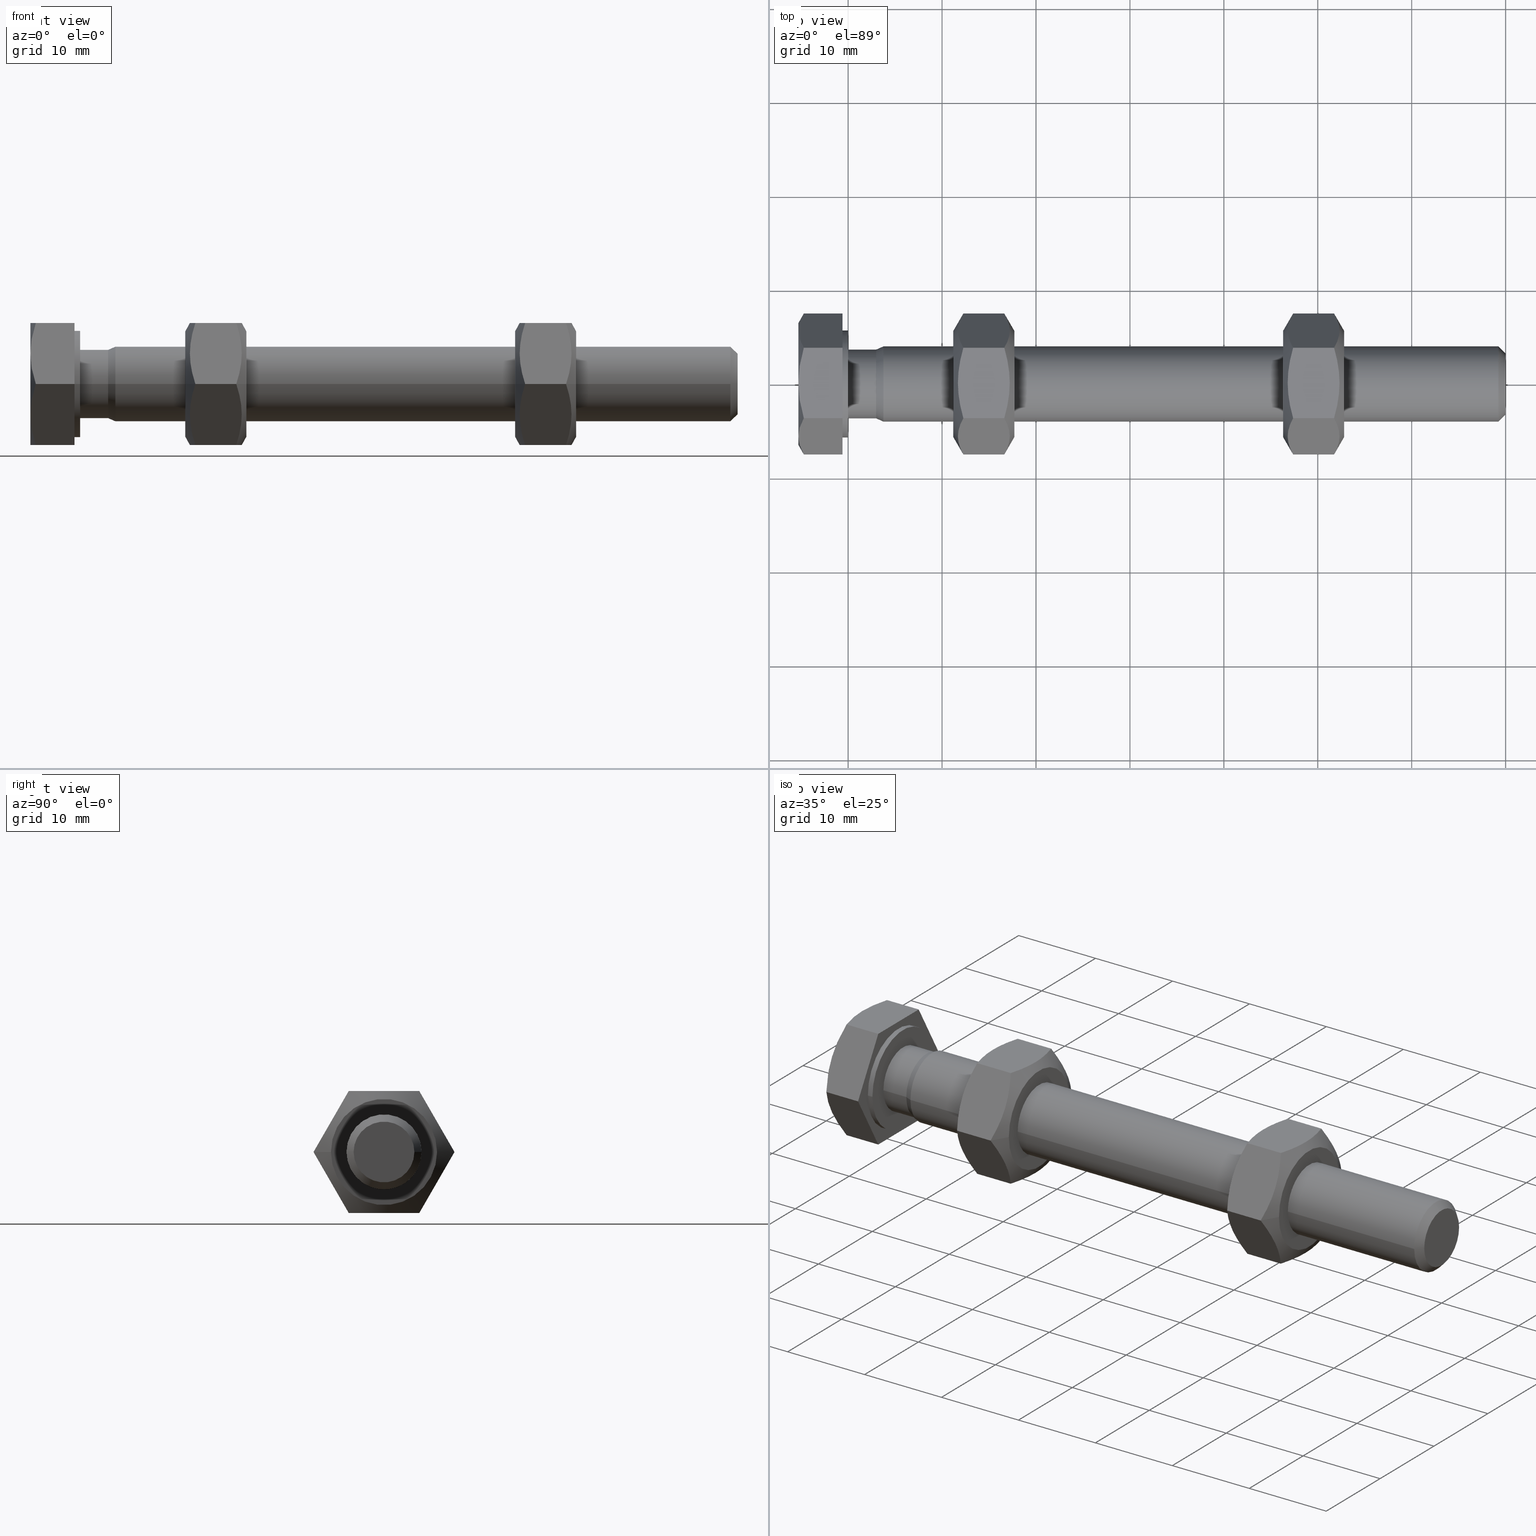
[diagram: canonical four-view strip — front | top / right | iso, engineering-drawing reading convention]
A machine part, canonical four-view strip (front | top / right | iso — engineering-drawing reading convention). The complete STEP part file that produces these views, byte-faithful:
ISO-10303-21;
HEADER;
/* Generated by software containing ST-Developer
 * from STEP Tools, Inc. (www.steptools.com) 
 */

FILE_DESCRIPTION(
/* description */ (''),
/* implementation_level */ '2;1');

FILE_NAME(
/* name */ '800 047.stp',
/* time_stamp */ '2023-12-18T09:12:43+01:00',
/* author */ ('dusan.cotek'),
/* organization */ (''),
/* preprocessor_version */ 'ST-DEVELOPER v20',
/* originating_system */ 'Autodesk Inventor 2024',
/* authorisation */ '');

FILE_SCHEMA (('AUTOMOTIVE_DESIGN { 1 0 10303 214 3 1 1 }'));
ENDSEC;

DATA;
#10=MECHANICAL_DESIGN_GEOMETRIC_PRESENTATION_REPRESENTATION('',(#13,#14,
#15),#1315);
#11=SHAPE_REPRESENTATION_RELATIONSHIP('SRR','None',#1322,#12);
#12=ADVANCED_BREP_SHAPE_REPRESENTATION('',(#16,#17,#18),#1314);
#13=STYLED_ITEM('',(#1331),#16);
#14=STYLED_ITEM('',(#1331),#17);
#15=STYLED_ITEM('',(#1331),#18);
#16=MANIFOLD_SOLID_BREP('T\X2\011B\X0\leso1',#734);
#17=MANIFOLD_SOLID_BREP('T\X2\011B\X0\leso2',#735);
#18=MANIFOLD_SOLID_BREP('T\X2\011B\X0\leso3',#736);
#19=FACE_BOUND('',#152,.T.);
#20=FACE_BOUND('',#159,.T.);
#21=FACE_BOUND('',#165,.T.);
#22=FACE_BOUND('',#168,.T.);
#23=FACE_BOUND('',#180,.T.);
#24=FACE_BOUND('',#183,.T.);
#25=(
BOUNDED_CURVE()
B_SPLINE_CURVE(2,(#1042,#1043,#1044),.UNSPECIFIED.,.F.,.F.)
B_SPLINE_CURVE_WITH_KNOTS((3,3),(0.380711317203905,0.76142263440781),
 .UNSPECIFIED.)
CURVE()
GEOMETRIC_REPRESENTATION_ITEM()
RATIONAL_B_SPLINE_CURVE((1.,1.03795484930203,1.))
REPRESENTATION_ITEM('')
);
#26=(
BOUNDED_CURVE()
B_SPLINE_CURVE(2,(#1047,#1048,#1049),.UNSPECIFIED.,.F.,.F.)
B_SPLINE_CURVE_WITH_KNOTS((3,3),(0.,0.380711317203905),.UNSPECIFIED.)
CURVE()
GEOMETRIC_REPRESENTATION_ITEM()
RATIONAL_B_SPLINE_CURVE((1.,1.03795484930204,1.))
REPRESENTATION_ITEM('')
);
#27=(
BOUNDED_CURVE()
B_SPLINE_CURVE(2,(#1053,#1054,#1055),.UNSPECIFIED.,.F.,.F.)
B_SPLINE_CURVE_WITH_KNOTS((3,3),(0.,0.380711317203904),.UNSPECIFIED.)
CURVE()
GEOMETRIC_REPRESENTATION_ITEM()
RATIONAL_B_SPLINE_CURVE((1.,1.03795484930205,1.))
REPRESENTATION_ITEM('')
);
#28=(
BOUNDED_CURVE()
B_SPLINE_CURVE(2,(#1056,#1057,#1058),.UNSPECIFIED.,.F.,.F.)
B_SPLINE_CURVE_WITH_KNOTS((3,3),(0.380711317203905,0.76142263440781),
 .UNSPECIFIED.)
CURVE()
GEOMETRIC_REPRESENTATION_ITEM()
RATIONAL_B_SPLINE_CURVE((1.,1.03795484930202,1.))
REPRESENTATION_ITEM('')
);
#29=(
BOUNDED_CURVE()
B_SPLINE_CURVE(2,(#1063,#1064,#1065),.UNSPECIFIED.,.F.,.F.)
B_SPLINE_CURVE_WITH_KNOTS((3,3),(0.380711317203905,0.76142263440781),
 .UNSPECIFIED.)
CURVE()
GEOMETRIC_REPRESENTATION_ITEM()
RATIONAL_B_SPLINE_CURVE((1.,1.03795484930206,1.))
REPRESENTATION_ITEM('')
);
#30=(
BOUNDED_CURVE()
B_SPLINE_CURVE(2,(#1067,#1068,#1069),.UNSPECIFIED.,.F.,.F.)
B_SPLINE_CURVE_WITH_KNOTS((3,3),(0.,0.380711317203905),.UNSPECIFIED.)
CURVE()
GEOMETRIC_REPRESENTATION_ITEM()
RATIONAL_B_SPLINE_CURVE((1.,1.03795484930205,1.))
REPRESENTATION_ITEM('')
);
#31=(
BOUNDED_CURVE()
B_SPLINE_CURVE(2,(#1073,#1074,#1075),.UNSPECIFIED.,.F.,.F.)
B_SPLINE_CURVE_WITH_KNOTS((3,3),(0.,0.380711317203904),.UNSPECIFIED.)
CURVE()
GEOMETRIC_REPRESENTATION_ITEM()
RATIONAL_B_SPLINE_CURVE((1.,1.03795484930204,1.))
REPRESENTATION_ITEM('')
);
#32=(
BOUNDED_CURVE()
B_SPLINE_CURVE(2,(#1076,#1077,#1078),.UNSPECIFIED.,.F.,.F.)
B_SPLINE_CURVE_WITH_KNOTS((3,3),(0.380711317203904,0.761422634407808),
 .UNSPECIFIED.)
CURVE()
GEOMETRIC_REPRESENTATION_ITEM()
RATIONAL_B_SPLINE_CURVE((1.,1.03795484930205,1.))
REPRESENTATION_ITEM('')
);
#33=(
BOUNDED_CURVE()
B_SPLINE_CURVE(2,(#1083,#1084,#1085),.UNSPECIFIED.,.F.,.F.)
B_SPLINE_CURVE_WITH_KNOTS((3,3),(0.380711317203905,0.761422634407809),
 .UNSPECIFIED.)
CURVE()
GEOMETRIC_REPRESENTATION_ITEM()
RATIONAL_B_SPLINE_CURVE((1.,1.03795484930204,1.))
REPRESENTATION_ITEM('')
);
#34=(
BOUNDED_CURVE()
B_SPLINE_CURVE(2,(#1087,#1088,#1089),.UNSPECIFIED.,.F.,.F.)
B_SPLINE_CURVE_WITH_KNOTS((3,3),(0.,0.380711317203905),.UNSPECIFIED.)
CURVE()
GEOMETRIC_REPRESENTATION_ITEM()
RATIONAL_B_SPLINE_CURVE((1.,1.03795484930205,1.))
REPRESENTATION_ITEM('')
);
#35=(
BOUNDED_CURVE()
B_SPLINE_CURVE(2,(#1092,#1093,#1094),.UNSPECIFIED.,.F.,.F.)
B_SPLINE_CURVE_WITH_KNOTS((3,3),(0.,0.380711317203905),.UNSPECIFIED.)
CURVE()
GEOMETRIC_REPRESENTATION_ITEM()
RATIONAL_B_SPLINE_CURVE((1.,1.03795484930204,1.))
REPRESENTATION_ITEM('')
);
#36=(
BOUNDED_CURVE()
B_SPLINE_CURVE(2,(#1095,#1096,#1097),.UNSPECIFIED.,.F.,.F.)
B_SPLINE_CURVE_WITH_KNOTS((3,3),(0.380711317203904,0.761422634407809),
 .UNSPECIFIED.)
CURVE()
GEOMETRIC_REPRESENTATION_ITEM()
RATIONAL_B_SPLINE_CURVE((1.,1.03795484930205,1.))
REPRESENTATION_ITEM('')
);
#37=(
BOUNDED_CURVE()
B_SPLINE_CURVE(2,(#1165,#1166,#1167),.UNSPECIFIED.,.F.,.F.)
B_SPLINE_CURVE_WITH_KNOTS((3,3),(0.,0.759483489750648),.UNSPECIFIED.)
CURVE()
GEOMETRIC_REPRESENTATION_ITEM()
RATIONAL_B_SPLINE_CURVE((1.,1.15470053837925,1.))
REPRESENTATION_ITEM('')
);
#38=(
BOUNDED_CURVE()
B_SPLINE_CURVE(2,(#1169,#1170,#1171),.UNSPECIFIED.,.F.,.F.)
B_SPLINE_CURVE_WITH_KNOTS((3,3),(0.,0.759483489750648),.UNSPECIFIED.)
CURVE()
GEOMETRIC_REPRESENTATION_ITEM()
RATIONAL_B_SPLINE_CURVE((1.,1.15470053837925,1.))
REPRESENTATION_ITEM('')
);
#39=(
BOUNDED_CURVE()
B_SPLINE_CURVE(2,(#1173,#1174,#1175),.UNSPECIFIED.,.F.,.F.)
B_SPLINE_CURVE_WITH_KNOTS((3,3),(0.,0.759483489750645),.UNSPECIFIED.)
CURVE()
GEOMETRIC_REPRESENTATION_ITEM()
RATIONAL_B_SPLINE_CURVE((1.,1.15470053837925,1.))
REPRESENTATION_ITEM('')
);
#40=(
BOUNDED_CURVE()
B_SPLINE_CURVE(2,(#1177,#1178,#1179),.UNSPECIFIED.,.F.,.F.)
B_SPLINE_CURVE_WITH_KNOTS((3,3),(0.,0.759483489750644),.UNSPECIFIED.)
CURVE()
GEOMETRIC_REPRESENTATION_ITEM()
RATIONAL_B_SPLINE_CURVE((1.,1.15470053837925,1.))
REPRESENTATION_ITEM('')
);
#41=(
BOUNDED_CURVE()
B_SPLINE_CURVE(2,(#1181,#1182,#1183),.UNSPECIFIED.,.F.,.F.)
B_SPLINE_CURVE_WITH_KNOTS((3,3),(0.,0.759483489750649),.UNSPECIFIED.)
CURVE()
GEOMETRIC_REPRESENTATION_ITEM()
RATIONAL_B_SPLINE_CURVE((1.,1.15470053837925,1.))
REPRESENTATION_ITEM('')
);
#42=(
BOUNDED_CURVE()
B_SPLINE_CURVE(2,(#1185,#1186,#1187),.UNSPECIFIED.,.F.,.F.)
B_SPLINE_CURVE_WITH_KNOTS((3,3),(0.,0.759483489750647),.UNSPECIFIED.)
CURVE()
GEOMETRIC_REPRESENTATION_ITEM()
RATIONAL_B_SPLINE_CURVE((1.,1.15470053837925,1.))
REPRESENTATION_ITEM('')
);
#43=(
BOUNDED_CURVE()
B_SPLINE_CURVE(2,(#1191,#1192,#1193),.UNSPECIFIED.,.F.,.F.)
B_SPLINE_CURVE_WITH_KNOTS((3,3),(0.,0.759483489750647),.UNSPECIFIED.)
CURVE()
GEOMETRIC_REPRESENTATION_ITEM()
RATIONAL_B_SPLINE_CURVE((1.,1.15470053837925,1.))
REPRESENTATION_ITEM('')
);
#44=(
BOUNDED_CURVE()
B_SPLINE_CURVE(2,(#1195,#1196,#1197),.UNSPECIFIED.,.F.,.F.)
B_SPLINE_CURVE_WITH_KNOTS((3,3),(0.,0.759483489750647),.UNSPECIFIED.)
CURVE()
GEOMETRIC_REPRESENTATION_ITEM()
RATIONAL_B_SPLINE_CURVE((1.,1.15470053837925,1.))
REPRESENTATION_ITEM('')
);
#45=(
BOUNDED_CURVE()
B_SPLINE_CURVE(2,(#1199,#1200,#1201),.UNSPECIFIED.,.F.,.F.)
B_SPLINE_CURVE_WITH_KNOTS((3,3),(0.,0.759483489750646),.UNSPECIFIED.)
CURVE()
GEOMETRIC_REPRESENTATION_ITEM()
RATIONAL_B_SPLINE_CURVE((1.,1.15470053837924,1.))
REPRESENTATION_ITEM('')
);
#46=(
BOUNDED_CURVE()
B_SPLINE_CURVE(2,(#1204,#1205,#1206),.UNSPECIFIED.,.F.,.F.)
B_SPLINE_CURVE_WITH_KNOTS((3,3),(0.,0.759483489750648),.UNSPECIFIED.)
CURVE()
GEOMETRIC_REPRESENTATION_ITEM()
RATIONAL_B_SPLINE_CURVE((1.,1.15470053837926,1.))
REPRESENTATION_ITEM('')
);
#47=(
BOUNDED_CURVE()
B_SPLINE_CURVE(2,(#1208,#1209,#1210),.UNSPECIFIED.,.F.,.F.)
B_SPLINE_CURVE_WITH_KNOTS((3,3),(0.,0.759483489750643),.UNSPECIFIED.)
CURVE()
GEOMETRIC_REPRESENTATION_ITEM()
RATIONAL_B_SPLINE_CURVE((1.,1.15470053837925,1.))
REPRESENTATION_ITEM('')
);
#48=(
BOUNDED_CURVE()
B_SPLINE_CURVE(2,(#1211,#1212,#1213),.UNSPECIFIED.,.F.,.F.)
B_SPLINE_CURVE_WITH_KNOTS((3,3),(0.,0.759483489750644),.UNSPECIFIED.)
CURVE()
GEOMETRIC_REPRESENTATION_ITEM()
RATIONAL_B_SPLINE_CURVE((1.,1.15470053837925,1.))
REPRESENTATION_ITEM('')
);
#49=(
BOUNDED_CURVE()
B_SPLINE_CURVE(2,(#1251,#1252,#1253),.UNSPECIFIED.,.F.,.F.)
B_SPLINE_CURVE_WITH_KNOTS((3,3),(0.,0.759483489750648),.UNSPECIFIED.)
CURVE()
GEOMETRIC_REPRESENTATION_ITEM()
RATIONAL_B_SPLINE_CURVE((1.,1.15470053837925,1.))
REPRESENTATION_ITEM('')
);
#50=(
BOUNDED_CURVE()
B_SPLINE_CURVE(2,(#1255,#1256,#1257),.UNSPECIFIED.,.F.,.F.)
B_SPLINE_CURVE_WITH_KNOTS((3,3),(0.,0.759483489750648),.UNSPECIFIED.)
CURVE()
GEOMETRIC_REPRESENTATION_ITEM()
RATIONAL_B_SPLINE_CURVE((1.,1.15470053837925,1.))
REPRESENTATION_ITEM('')
);
#51=(
BOUNDED_CURVE()
B_SPLINE_CURVE(2,(#1259,#1260,#1261),.UNSPECIFIED.,.F.,.F.)
B_SPLINE_CURVE_WITH_KNOTS((3,3),(0.,0.759483489750645),.UNSPECIFIED.)
CURVE()
GEOMETRIC_REPRESENTATION_ITEM()
RATIONAL_B_SPLINE_CURVE((1.,1.15470053837925,1.))
REPRESENTATION_ITEM('')
);
#52=(
BOUNDED_CURVE()
B_SPLINE_CURVE(2,(#1263,#1264,#1265),.UNSPECIFIED.,.F.,.F.)
B_SPLINE_CURVE_WITH_KNOTS((3,3),(0.,0.759483489750644),.UNSPECIFIED.)
CURVE()
GEOMETRIC_REPRESENTATION_ITEM()
RATIONAL_B_SPLINE_CURVE((1.,1.15470053837925,1.))
REPRESENTATION_ITEM('')
);
#53=(
BOUNDED_CURVE()
B_SPLINE_CURVE(2,(#1267,#1268,#1269),.UNSPECIFIED.,.F.,.F.)
B_SPLINE_CURVE_WITH_KNOTS((3,3),(0.,0.759483489750649),.UNSPECIFIED.)
CURVE()
GEOMETRIC_REPRESENTATION_ITEM()
RATIONAL_B_SPLINE_CURVE((1.,1.15470053837925,1.))
REPRESENTATION_ITEM('')
);
#54=(
BOUNDED_CURVE()
B_SPLINE_CURVE(2,(#1271,#1272,#1273),.UNSPECIFIED.,.F.,.F.)
B_SPLINE_CURVE_WITH_KNOTS((3,3),(0.,0.759483489750647),.UNSPECIFIED.)
CURVE()
GEOMETRIC_REPRESENTATION_ITEM()
RATIONAL_B_SPLINE_CURVE((1.,1.15470053837925,1.))
REPRESENTATION_ITEM('')
);
#55=(
BOUNDED_CURVE()
B_SPLINE_CURVE(2,(#1277,#1278,#1279),.UNSPECIFIED.,.F.,.F.)
B_SPLINE_CURVE_WITH_KNOTS((3,3),(0.,0.759483489750647),.UNSPECIFIED.)
CURVE()
GEOMETRIC_REPRESENTATION_ITEM()
RATIONAL_B_SPLINE_CURVE((1.,1.15470053837925,1.))
REPRESENTATION_ITEM('')
);
#56=(
BOUNDED_CURVE()
B_SPLINE_CURVE(2,(#1281,#1282,#1283),.UNSPECIFIED.,.F.,.F.)
B_SPLINE_CURVE_WITH_KNOTS((3,3),(0.,0.759483489750647),.UNSPECIFIED.)
CURVE()
GEOMETRIC_REPRESENTATION_ITEM()
RATIONAL_B_SPLINE_CURVE((1.,1.15470053837925,1.))
REPRESENTATION_ITEM('')
);
#57=(
BOUNDED_CURVE()
B_SPLINE_CURVE(2,(#1285,#1286,#1287),.UNSPECIFIED.,.F.,.F.)
B_SPLINE_CURVE_WITH_KNOTS((3,3),(0.,0.759483489750646),.UNSPECIFIED.)
CURVE()
GEOMETRIC_REPRESENTATION_ITEM()
RATIONAL_B_SPLINE_CURVE((1.,1.15470053837924,1.))
REPRESENTATION_ITEM('')
);
#58=(
BOUNDED_CURVE()
B_SPLINE_CURVE(2,(#1290,#1291,#1292),.UNSPECIFIED.,.F.,.F.)
B_SPLINE_CURVE_WITH_KNOTS((3,3),(0.,0.759483489750648),.UNSPECIFIED.)
CURVE()
GEOMETRIC_REPRESENTATION_ITEM()
RATIONAL_B_SPLINE_CURVE((1.,1.15470053837926,1.))
REPRESENTATION_ITEM('')
);
#59=(
BOUNDED_CURVE()
B_SPLINE_CURVE(2,(#1294,#1295,#1296),.UNSPECIFIED.,.F.,.F.)
B_SPLINE_CURVE_WITH_KNOTS((3,3),(0.,0.759483489750643),.UNSPECIFIED.)
CURVE()
GEOMETRIC_REPRESENTATION_ITEM()
RATIONAL_B_SPLINE_CURVE((1.,1.15470053837925,1.))
REPRESENTATION_ITEM('')
);
#60=(
BOUNDED_CURVE()
B_SPLINE_CURVE(2,(#1297,#1298,#1299),.UNSPECIFIED.,.F.,.F.)
B_SPLINE_CURVE_WITH_KNOTS((3,3),(0.,0.759483489750644),.UNSPECIFIED.)
CURVE()
GEOMETRIC_REPRESENTATION_ITEM()
RATIONAL_B_SPLINE_CURVE((1.,1.15470053837925,1.))
REPRESENTATION_ITEM('')
);
#61=PLANE('',#765);
#62=PLANE('',#778);
#63=PLANE('',#779);
#64=PLANE('',#780);
#65=PLANE('',#781);
#66=PLANE('',#783);
#67=PLANE('',#784);
#68=PLANE('',#785);
#69=PLANE('',#786);
#70=PLANE('',#789);
#71=PLANE('',#800);
#72=PLANE('',#804);
#73=PLANE('',#808);
#74=PLANE('',#809);
#75=PLANE('',#810);
#76=PLANE('',#811);
#77=PLANE('',#812);
#78=PLANE('',#813);
#79=PLANE('',#820);
#80=PLANE('',#824);
#81=PLANE('',#828);
#82=PLANE('',#829);
#83=PLANE('',#830);
#84=PLANE('',#831);
#85=PLANE('',#832);
#86=PLANE('',#833);
#87=CYLINDRICAL_SURFACE('',#763,4.);
#88=CYLINDRICAL_SURFACE('',#787,5.7);
#89=CYLINDRICAL_SURFACE('',#791,3.66170875);
#90=CYLINDRICAL_SURFACE('',#797,3.3235);
#91=CYLINDRICAL_SURFACE('',#817,3.3235);
#92=FACE_OUTER_BOUND('',#139,.T.);
#93=FACE_OUTER_BOUND('',#140,.T.);
#94=FACE_OUTER_BOUND('',#141,.T.);
#95=FACE_OUTER_BOUND('',#142,.T.);
#96=FACE_OUTER_BOUND('',#143,.T.);
#97=FACE_OUTER_BOUND('',#144,.T.);
#98=FACE_OUTER_BOUND('',#145,.T.);
#99=FACE_OUTER_BOUND('',#146,.T.);
#100=FACE_OUTER_BOUND('',#147,.T.);
#101=FACE_OUTER_BOUND('',#148,.T.);
#102=FACE_OUTER_BOUND('',#149,.T.);
#103=FACE_OUTER_BOUND('',#150,.T.);
#104=FACE_OUTER_BOUND('',#151,.T.);
#105=FACE_OUTER_BOUND('',#153,.T.);
#106=FACE_OUTER_BOUND('',#154,.T.);
#107=FACE_OUTER_BOUND('',#155,.T.);
#108=FACE_OUTER_BOUND('',#156,.T.);
#109=FACE_OUTER_BOUND('',#157,.T.);
#110=FACE_OUTER_BOUND('',#158,.T.);
#111=FACE_OUTER_BOUND('',#160,.T.);
#112=FACE_OUTER_BOUND('',#161,.T.);
#113=FACE_OUTER_BOUND('',#162,.T.);
#114=FACE_OUTER_BOUND('',#163,.T.);
#115=FACE_OUTER_BOUND('',#164,.T.);
#116=FACE_OUTER_BOUND('',#166,.T.);
#117=FACE_OUTER_BOUND('',#167,.T.);
#118=FACE_OUTER_BOUND('',#169,.T.);
#119=FACE_OUTER_BOUND('',#170,.T.);
#120=FACE_OUTER_BOUND('',#171,.T.);
#121=FACE_OUTER_BOUND('',#172,.T.);
#122=FACE_OUTER_BOUND('',#173,.T.);
#123=FACE_OUTER_BOUND('',#174,.T.);
#124=FACE_OUTER_BOUND('',#175,.T.);
#125=FACE_OUTER_BOUND('',#176,.T.);
#126=FACE_OUTER_BOUND('',#177,.T.);
#127=FACE_OUTER_BOUND('',#178,.T.);
#128=FACE_OUTER_BOUND('',#179,.T.);
#129=FACE_OUTER_BOUND('',#181,.T.);
#130=FACE_OUTER_BOUND('',#182,.T.);
#131=FACE_OUTER_BOUND('',#184,.T.);
#132=FACE_OUTER_BOUND('',#185,.T.);
#133=FACE_OUTER_BOUND('',#186,.T.);
#134=FACE_OUTER_BOUND('',#187,.T.);
#135=FACE_OUTER_BOUND('',#188,.T.);
#136=FACE_OUTER_BOUND('',#189,.T.);
#137=FACE_OUTER_BOUND('',#190,.T.);
#138=FACE_OUTER_BOUND('',#191,.T.);
#139=EDGE_LOOP('',(#465,#466,#467,#468,#469));
#140=EDGE_LOOP('',(#470,#471,#472,#473,#474));
#141=EDGE_LOOP('',(#475));
#142=EDGE_LOOP('',(#476,#477,#478));
#143=EDGE_LOOP('',(#479,#480,#481));
#144=EDGE_LOOP('',(#482,#483,#484));
#145=EDGE_LOOP('',(#485,#486,#487));
#146=EDGE_LOOP('',(#488,#489,#490));
#147=EDGE_LOOP('',(#491,#492,#493));
#148=EDGE_LOOP('',(#494,#495,#496,#497,#498));
#149=EDGE_LOOP('',(#499,#500,#501,#502,#503));
#150=EDGE_LOOP('',(#504,#505,#506,#507,#508));
#151=EDGE_LOOP('',(#509,#510,#511,#512,#513,#514));
#152=EDGE_LOOP('',(#515));
#153=EDGE_LOOP('',(#516,#517,#518,#519,#520));
#154=EDGE_LOOP('',(#521,#522,#523,#524,#525));
#155=EDGE_LOOP('',(#526,#527,#528,#529,#530));
#156=EDGE_LOOP('',(#531,#532,#533,#534,#535,#536));
#157=EDGE_LOOP('',(#537,#538,#539,#540));
#158=EDGE_LOOP('',(#541));
#159=EDGE_LOOP('',(#542));
#160=EDGE_LOOP('',(#543,#544,#545,#546));
#161=EDGE_LOOP('',(#547,#548,#549,#550));
#162=EDGE_LOOP('',(#551,#552,#553,#554));
#163=EDGE_LOOP('',(#555,#556,#557,#558,#559));
#164=EDGE_LOOP('',(#560));
#165=EDGE_LOOP('',(#561));
#166=EDGE_LOOP('',(#562,#563,#564,#565,#566));
#167=EDGE_LOOP('',(#567));
#168=EDGE_LOOP('',(#568));
#169=EDGE_LOOP('',(#569,#570,#571,#572,#573,#574,#575,#576,#577));
#170=EDGE_LOOP('',(#578,#579,#580,#581,#582,#583,#584,#585,#586));
#171=EDGE_LOOP('',(#587,#588,#589,#590));
#172=EDGE_LOOP('',(#591,#592,#593,#594));
#173=EDGE_LOOP('',(#595,#596,#597,#598));
#174=EDGE_LOOP('',(#599,#600,#601,#602));
#175=EDGE_LOOP('',(#603,#604,#605,#606));
#176=EDGE_LOOP('',(#607,#608,#609,#610));
#177=EDGE_LOOP('',(#611,#612,#613,#614));
#178=EDGE_LOOP('',(#615,#616,#617,#618,#619));
#179=EDGE_LOOP('',(#620));
#180=EDGE_LOOP('',(#621));
#181=EDGE_LOOP('',(#622,#623,#624,#625,#626));
#182=EDGE_LOOP('',(#627));
#183=EDGE_LOOP('',(#628));
#184=EDGE_LOOP('',(#629,#630,#631,#632,#633,#634,#635,#636,#637));
#185=EDGE_LOOP('',(#638,#639,#640,#641,#642,#643,#644,#645,#646));
#186=EDGE_LOOP('',(#647,#648,#649,#650));
#187=EDGE_LOOP('',(#651,#652,#653,#654));
#188=EDGE_LOOP('',(#655,#656,#657,#658));
#189=EDGE_LOOP('',(#659,#660,#661,#662));
#190=EDGE_LOOP('',(#663,#664,#665,#666));
#191=EDGE_LOOP('',(#667,#668,#669,#670));
#192=LINE('',#1032,#231);
#193=LINE('',#1036,#232);
#194=LINE('',#1101,#233);
#195=LINE('',#1103,#234);
#196=LINE('',#1104,#235);
#197=LINE('',#1107,#236);
#198=LINE('',#1108,#237);
#199=LINE('',#1111,#238);
#200=LINE('',#1112,#239);
#201=LINE('',#1115,#240);
#202=LINE('',#1117,#241);
#203=LINE('',#1118,#242);
#204=LINE('',#1122,#243);
#205=LINE('',#1124,#244);
#206=LINE('',#1130,#245);
#207=LINE('',#1137,#246);
#208=LINE('',#1139,#247);
#209=LINE('',#1144,#248);
#210=LINE('',#1148,#249);
#211=LINE('',#1157,#250);
#212=LINE('',#1184,#251);
#213=LINE('',#1202,#252);
#214=LINE('',#1215,#253);
#215=LINE('',#1216,#254);
#216=LINE('',#1218,#255);
#217=LINE('',#1220,#256);
#218=LINE('',#1222,#257);
#219=LINE('',#1224,#258);
#220=LINE('',#1230,#259);
#221=LINE('',#1234,#260);
#222=LINE('',#1243,#261);
#223=LINE('',#1270,#262);
#224=LINE('',#1288,#263);
#225=LINE('',#1301,#264);
#226=LINE('',#1302,#265);
#227=LINE('',#1304,#266);
#228=LINE('',#1306,#267);
#229=LINE('',#1308,#268);
#230=LINE('',#1310,#269);
#231=VECTOR('',#842,3.61659375000001);
#232=VECTOR('',#847,4.);
#233=VECTOR('',#878,10.);
#234=VECTOR('',#879,10.);
#235=VECTOR('',#880,10.);
#236=VECTOR('',#883,10.);
#237=VECTOR('',#884,10.);
#238=VECTOR('',#887,10.);
#239=VECTOR('',#888,10.);
#240=VECTOR('',#891,10.);
#241=VECTOR('',#892,10.);
#242=VECTOR('',#893,9.99999999999999);
#243=VECTOR('',#898,10.);
#244=VECTOR('',#901,10.);
#245=VECTOR('',#910,5.7);
#246=VECTOR('',#919,3.66170875);
#247=VECTOR('',#922,3.830854375);
#248=VECTOR('',#927,3.6617911733533);
#249=VECTOR('',#932,3.3235);
#250=VECTOR('',#943,3.6617911733533);
#251=VECTOR('',#952,6.57777674973257);
#252=VECTOR('',#955,6.57777674973257);
#253=VECTOR('',#958,10.);
#254=VECTOR('',#959,10.);
#255=VECTOR('',#962,10.);
#256=VECTOR('',#965,10.);
#257=VECTOR('',#968,10.);
#258=VECTOR('',#971,10.);
#259=VECTOR('',#978,3.6617911733533);
#260=VECTOR('',#983,3.3235);
#261=VECTOR('',#994,3.6617911733533);
#262=VECTOR('',#1003,6.57777674973257);
#263=VECTOR('',#1006,6.57777674973257);
#264=VECTOR('',#1009,10.);
#265=VECTOR('',#1010,10.);
#266=VECTOR('',#1013,10.);
#267=VECTOR('',#1016,10.);
#268=VECTOR('',#1019,10.);
#269=VECTOR('',#1022,10.);
#270=CIRCLE('',#760,4.);
#271=CIRCLE('',#761,4.);
#272=CIRCLE('',#762,3.23318750000001);
#273=CIRCLE('',#764,4.);
#274=CIRCLE('',#767,6.50000000000003);
#275=CIRCLE('',#769,6.50000000000003);
#276=CIRCLE('',#771,6.50000000000003);
#277=CIRCLE('',#773,6.50000000000003);
#278=CIRCLE('',#775,6.50000000000003);
#279=CIRCLE('',#777,6.50000000000003);
#280=CIRCLE('',#782,5.7);
#281=CIRCLE('',#788,5.7);
#282=CIRCLE('',#790,3.66170875);
#283=CIRCLE('',#792,3.66170875);
#284=CIRCLE('',#795,3.3235);
#285=CIRCLE('',#796,4.00008234670659);
#286=CIRCLE('',#798,3.3235);
#287=CIRCLE('',#799,3.3235);
#288=CIRCLE('',#801,5.65);
#289=CIRCLE('',#803,4.00008234670659);
#290=CIRCLE('',#805,5.65);
#291=CIRCLE('',#815,3.3235);
#292=CIRCLE('',#816,4.00008234670659);
#293=CIRCLE('',#818,3.3235);
#294=CIRCLE('',#819,3.3235);
#295=CIRCLE('',#821,5.65);
#296=CIRCLE('',#823,4.00008234670659);
#297=CIRCLE('',#825,5.65);
#298=VERTEX_POINT('',#1027);
#299=VERTEX_POINT('',#1028);
#300=VERTEX_POINT('',#1031);
#301=VERTEX_POINT('',#1035);
#302=VERTEX_POINT('',#1040);
#303=VERTEX_POINT('',#1041);
#304=VERTEX_POINT('',#1045);
#305=VERTEX_POINT('',#1051);
#306=VERTEX_POINT('',#1052);
#307=VERTEX_POINT('',#1061);
#308=VERTEX_POINT('',#1062);
#309=VERTEX_POINT('',#1071);
#310=VERTEX_POINT('',#1072);
#311=VERTEX_POINT('',#1081);
#312=VERTEX_POINT('',#1082);
#313=VERTEX_POINT('',#1091);
#314=VERTEX_POINT('',#1100);
#315=VERTEX_POINT('',#1102);
#316=VERTEX_POINT('',#1106);
#317=VERTEX_POINT('',#1110);
#318=VERTEX_POINT('',#1114);
#319=VERTEX_POINT('',#1116);
#320=VERTEX_POINT('',#1119);
#321=VERTEX_POINT('',#1128);
#322=VERTEX_POINT('',#1132);
#323=VERTEX_POINT('',#1135);
#324=VERTEX_POINT('',#1141);
#325=VERTEX_POINT('',#1143);
#326=VERTEX_POINT('',#1147);
#327=VERTEX_POINT('',#1149);
#328=VERTEX_POINT('',#1153);
#329=VERTEX_POINT('',#1156);
#330=VERTEX_POINT('',#1160);
#331=VERTEX_POINT('',#1163);
#332=VERTEX_POINT('',#1164);
#333=VERTEX_POINT('',#1168);
#334=VERTEX_POINT('',#1172);
#335=VERTEX_POINT('',#1176);
#336=VERTEX_POINT('',#1180);
#337=VERTEX_POINT('',#1189);
#338=VERTEX_POINT('',#1190);
#339=VERTEX_POINT('',#1194);
#340=VERTEX_POINT('',#1198);
#341=VERTEX_POINT('',#1203);
#342=VERTEX_POINT('',#1207);
#343=VERTEX_POINT('',#1227);
#344=VERTEX_POINT('',#1229);
#345=VERTEX_POINT('',#1233);
#346=VERTEX_POINT('',#1235);
#347=VERTEX_POINT('',#1239);
#348=VERTEX_POINT('',#1242);
#349=VERTEX_POINT('',#1246);
#350=VERTEX_POINT('',#1249);
#351=VERTEX_POINT('',#1250);
#352=VERTEX_POINT('',#1254);
#353=VERTEX_POINT('',#1258);
#354=VERTEX_POINT('',#1262);
#355=VERTEX_POINT('',#1266);
#356=VERTEX_POINT('',#1275);
#357=VERTEX_POINT('',#1276);
#358=VERTEX_POINT('',#1280);
#359=VERTEX_POINT('',#1284);
#360=VERTEX_POINT('',#1289);
#361=VERTEX_POINT('',#1293);
#362=EDGE_CURVE('',#298,#299,#270,.T.);
#363=EDGE_CURVE('',#299,#298,#271,.T.);
#364=EDGE_CURVE('',#298,#300,#192,.T.);
#365=EDGE_CURVE('',#300,#300,#272,.T.);
#366=EDGE_CURVE('',#299,#301,#193,.T.);
#367=EDGE_CURVE('',#301,#301,#273,.T.);
#368=EDGE_CURVE('',#302,#303,#25,.T.);
#369=EDGE_CURVE('',#304,#302,#274,.T.);
#370=EDGE_CURVE('',#303,#304,#26,.T.);
#371=EDGE_CURVE('',#305,#306,#27,.T.);
#372=EDGE_CURVE('',#304,#305,#28,.T.);
#373=EDGE_CURVE('',#306,#304,#275,.T.);
#374=EDGE_CURVE('',#307,#308,#29,.T.);
#375=EDGE_CURVE('',#302,#307,#276,.T.);
#376=EDGE_CURVE('',#308,#302,#30,.T.);
#377=EDGE_CURVE('',#309,#310,#31,.T.);
#378=EDGE_CURVE('',#306,#309,#32,.T.);
#379=EDGE_CURVE('',#310,#306,#277,.T.);
#380=EDGE_CURVE('',#311,#312,#33,.T.);
#381=EDGE_CURVE('',#307,#311,#278,.T.);
#382=EDGE_CURVE('',#312,#307,#34,.T.);
#383=EDGE_CURVE('',#313,#311,#35,.T.);
#384=EDGE_CURVE('',#310,#313,#36,.T.);
#385=EDGE_CURVE('',#311,#310,#279,.T.);
#386=EDGE_CURVE('',#314,#312,#194,.T.);
#387=EDGE_CURVE('',#315,#314,#195,.T.);
#388=EDGE_CURVE('',#315,#313,#196,.T.);
#389=EDGE_CURVE('',#316,#308,#197,.T.);
#390=EDGE_CURVE('',#314,#316,#198,.T.);
#391=EDGE_CURVE('',#317,#303,#199,.T.);
#392=EDGE_CURVE('',#316,#317,#200,.T.);
#393=EDGE_CURVE('',#317,#318,#201,.T.);
#394=EDGE_CURVE('',#318,#319,#202,.T.);
#395=EDGE_CURVE('',#319,#315,#203,.T.);
#396=EDGE_CURVE('',#320,#320,#280,.T.);
#397=EDGE_CURVE('',#318,#305,#204,.T.);
#398=EDGE_CURVE('',#319,#309,#205,.T.);
#399=EDGE_CURVE('',#321,#321,#281,.T.);
#400=EDGE_CURVE('',#321,#320,#206,.T.);
#401=EDGE_CURVE('',#322,#322,#282,.T.);
#402=EDGE_CURVE('',#323,#323,#283,.T.);
#403=EDGE_CURVE('',#323,#322,#207,.T.);
#404=EDGE_CURVE('',#301,#323,#208,.T.);
#405=EDGE_CURVE('',#324,#324,#284,.T.);
#406=EDGE_CURVE('',#324,#325,#209,.T.);
#407=EDGE_CURVE('',#325,#325,#285,.T.);
#408=EDGE_CURVE('',#324,#326,#210,.T.);
#409=EDGE_CURVE('',#327,#326,#286,.T.);
#410=EDGE_CURVE('',#326,#327,#287,.T.);
#411=EDGE_CURVE('',#328,#328,#288,.T.);
#412=EDGE_CURVE('',#327,#329,#211,.T.);
#413=EDGE_CURVE('',#329,#329,#289,.T.);
#414=EDGE_CURVE('',#330,#330,#290,.T.);
#415=EDGE_CURVE('',#331,#332,#37,.T.);
#416=EDGE_CURVE('',#333,#331,#38,.T.);
#417=EDGE_CURVE('',#334,#333,#39,.T.);
#418=EDGE_CURVE('',#335,#334,#40,.T.);
#419=EDGE_CURVE('',#336,#335,#41,.T.);
#420=EDGE_CURVE('',#336,#328,#212,.T.);
#421=EDGE_CURVE('',#332,#336,#42,.T.);
#422=EDGE_CURVE('',#337,#338,#43,.T.);
#423=EDGE_CURVE('',#339,#337,#44,.T.);
#424=EDGE_CURVE('',#340,#339,#45,.T.);
#425=EDGE_CURVE('',#340,#330,#213,.T.);
#426=EDGE_CURVE('',#341,#340,#46,.T.);
#427=EDGE_CURVE('',#342,#341,#47,.T.);
#428=EDGE_CURVE('',#338,#342,#48,.T.);
#429=EDGE_CURVE('',#333,#338,#214,.T.);
#430=EDGE_CURVE('',#334,#342,#215,.T.);
#431=EDGE_CURVE('',#335,#341,#216,.T.);
#432=EDGE_CURVE('',#331,#337,#217,.T.);
#433=EDGE_CURVE('',#332,#339,#218,.T.);
#434=EDGE_CURVE('',#336,#340,#219,.T.);
#435=EDGE_CURVE('',#343,#343,#291,.T.);
#436=EDGE_CURVE('',#343,#344,#220,.T.);
#437=EDGE_CURVE('',#344,#344,#292,.T.);
#438=EDGE_CURVE('',#343,#345,#221,.T.);
#439=EDGE_CURVE('',#346,#345,#293,.T.);
#440=EDGE_CURVE('',#345,#346,#294,.T.);
#441=EDGE_CURVE('',#347,#347,#295,.T.);
#442=EDGE_CURVE('',#346,#348,#222,.T.);
#443=EDGE_CURVE('',#348,#348,#296,.T.);
#444=EDGE_CURVE('',#349,#349,#297,.T.);
#445=EDGE_CURVE('',#350,#351,#49,.T.);
#446=EDGE_CURVE('',#352,#350,#50,.T.);
#447=EDGE_CURVE('',#353,#352,#51,.T.);
#448=EDGE_CURVE('',#354,#353,#52,.T.);
#449=EDGE_CURVE('',#355,#354,#53,.T.);
#450=EDGE_CURVE('',#355,#347,#223,.T.);
#451=EDGE_CURVE('',#351,#355,#54,.T.);
#452=EDGE_CURVE('',#356,#357,#55,.T.);
#453=EDGE_CURVE('',#358,#356,#56,.T.);
#454=EDGE_CURVE('',#359,#358,#57,.T.);
#455=EDGE_CURVE('',#359,#349,#224,.T.);
#456=EDGE_CURVE('',#360,#359,#58,.T.);
#457=EDGE_CURVE('',#361,#360,#59,.T.);
#458=EDGE_CURVE('',#357,#361,#60,.T.);
#459=EDGE_CURVE('',#352,#357,#225,.T.);
#460=EDGE_CURVE('',#353,#361,#226,.T.);
#461=EDGE_CURVE('',#354,#360,#227,.T.);
#462=EDGE_CURVE('',#350,#356,#228,.T.);
#463=EDGE_CURVE('',#351,#358,#229,.T.);
#464=EDGE_CURVE('',#355,#359,#230,.T.);
#465=ORIENTED_EDGE('',*,*,#362,.T.);
#466=ORIENTED_EDGE('',*,*,#363,.T.);
#467=ORIENTED_EDGE('',*,*,#364,.T.);
#468=ORIENTED_EDGE('',*,*,#365,.T.);
#469=ORIENTED_EDGE('',*,*,#364,.F.);
#470=ORIENTED_EDGE('',*,*,#362,.F.);
#471=ORIENTED_EDGE('',*,*,#363,.F.);
#472=ORIENTED_EDGE('',*,*,#366,.T.);
#473=ORIENTED_EDGE('',*,*,#367,.T.);
#474=ORIENTED_EDGE('',*,*,#366,.F.);
#475=ORIENTED_EDGE('',*,*,#365,.F.);
#476=ORIENTED_EDGE('',*,*,#368,.F.);
#477=ORIENTED_EDGE('',*,*,#369,.F.);
#478=ORIENTED_EDGE('',*,*,#370,.F.);
#479=ORIENTED_EDGE('',*,*,#371,.F.);
#480=ORIENTED_EDGE('',*,*,#372,.F.);
#481=ORIENTED_EDGE('',*,*,#373,.F.);
#482=ORIENTED_EDGE('',*,*,#374,.F.);
#483=ORIENTED_EDGE('',*,*,#375,.F.);
#484=ORIENTED_EDGE('',*,*,#376,.F.);
#485=ORIENTED_EDGE('',*,*,#377,.F.);
#486=ORIENTED_EDGE('',*,*,#378,.F.);
#487=ORIENTED_EDGE('',*,*,#379,.F.);
#488=ORIENTED_EDGE('',*,*,#380,.F.);
#489=ORIENTED_EDGE('',*,*,#381,.F.);
#490=ORIENTED_EDGE('',*,*,#382,.F.);
#491=ORIENTED_EDGE('',*,*,#383,.F.);
#492=ORIENTED_EDGE('',*,*,#384,.F.);
#493=ORIENTED_EDGE('',*,*,#385,.F.);
#494=ORIENTED_EDGE('',*,*,#383,.T.);
#495=ORIENTED_EDGE('',*,*,#380,.T.);
#496=ORIENTED_EDGE('',*,*,#386,.F.);
#497=ORIENTED_EDGE('',*,*,#387,.F.);
#498=ORIENTED_EDGE('',*,*,#388,.T.);
#499=ORIENTED_EDGE('',*,*,#382,.T.);
#500=ORIENTED_EDGE('',*,*,#374,.T.);
#501=ORIENTED_EDGE('',*,*,#389,.F.);
#502=ORIENTED_EDGE('',*,*,#390,.F.);
#503=ORIENTED_EDGE('',*,*,#386,.T.);
#504=ORIENTED_EDGE('',*,*,#376,.T.);
#505=ORIENTED_EDGE('',*,*,#368,.T.);
#506=ORIENTED_EDGE('',*,*,#391,.F.);
#507=ORIENTED_EDGE('',*,*,#392,.F.);
#508=ORIENTED_EDGE('',*,*,#389,.T.);
#509=ORIENTED_EDGE('',*,*,#392,.T.);
#510=ORIENTED_EDGE('',*,*,#393,.T.);
#511=ORIENTED_EDGE('',*,*,#394,.T.);
#512=ORIENTED_EDGE('',*,*,#395,.T.);
#513=ORIENTED_EDGE('',*,*,#387,.T.);
#514=ORIENTED_EDGE('',*,*,#390,.T.);
#515=ORIENTED_EDGE('',*,*,#396,.F.);
#516=ORIENTED_EDGE('',*,*,#372,.T.);
#517=ORIENTED_EDGE('',*,*,#397,.F.);
#518=ORIENTED_EDGE('',*,*,#393,.F.);
#519=ORIENTED_EDGE('',*,*,#391,.T.);
#520=ORIENTED_EDGE('',*,*,#370,.T.);
#521=ORIENTED_EDGE('',*,*,#378,.T.);
#522=ORIENTED_EDGE('',*,*,#398,.F.);
#523=ORIENTED_EDGE('',*,*,#394,.F.);
#524=ORIENTED_EDGE('',*,*,#397,.T.);
#525=ORIENTED_EDGE('',*,*,#371,.T.);
#526=ORIENTED_EDGE('',*,*,#384,.T.);
#527=ORIENTED_EDGE('',*,*,#388,.F.);
#528=ORIENTED_EDGE('',*,*,#395,.F.);
#529=ORIENTED_EDGE('',*,*,#398,.T.);
#530=ORIENTED_EDGE('',*,*,#377,.T.);
#531=ORIENTED_EDGE('',*,*,#369,.T.);
#532=ORIENTED_EDGE('',*,*,#375,.T.);
#533=ORIENTED_EDGE('',*,*,#381,.T.);
#534=ORIENTED_EDGE('',*,*,#385,.T.);
#535=ORIENTED_EDGE('',*,*,#379,.T.);
#536=ORIENTED_EDGE('',*,*,#373,.T.);
#537=ORIENTED_EDGE('',*,*,#399,.F.);
#538=ORIENTED_EDGE('',*,*,#400,.T.);
#539=ORIENTED_EDGE('',*,*,#396,.T.);
#540=ORIENTED_EDGE('',*,*,#400,.F.);
#541=ORIENTED_EDGE('',*,*,#399,.T.);
#542=ORIENTED_EDGE('',*,*,#401,.F.);
#543=ORIENTED_EDGE('',*,*,#402,.F.);
#544=ORIENTED_EDGE('',*,*,#403,.T.);
#545=ORIENTED_EDGE('',*,*,#401,.T.);
#546=ORIENTED_EDGE('',*,*,#403,.F.);
#547=ORIENTED_EDGE('',*,*,#367,.F.);
#548=ORIENTED_EDGE('',*,*,#404,.T.);
#549=ORIENTED_EDGE('',*,*,#402,.T.);
#550=ORIENTED_EDGE('',*,*,#404,.F.);
#551=ORIENTED_EDGE('',*,*,#405,.T.);
#552=ORIENTED_EDGE('',*,*,#406,.T.);
#553=ORIENTED_EDGE('',*,*,#407,.T.);
#554=ORIENTED_EDGE('',*,*,#406,.F.);
#555=ORIENTED_EDGE('',*,*,#405,.F.);
#556=ORIENTED_EDGE('',*,*,#408,.T.);
#557=ORIENTED_EDGE('',*,*,#409,.F.);
#558=ORIENTED_EDGE('',*,*,#410,.F.);
#559=ORIENTED_EDGE('',*,*,#408,.F.);
#560=ORIENTED_EDGE('',*,*,#411,.T.);
#561=ORIENTED_EDGE('',*,*,#407,.F.);
#562=ORIENTED_EDGE('',*,*,#409,.T.);
#563=ORIENTED_EDGE('',*,*,#410,.T.);
#564=ORIENTED_EDGE('',*,*,#412,.T.);
#565=ORIENTED_EDGE('',*,*,#413,.T.);
#566=ORIENTED_EDGE('',*,*,#412,.F.);
#567=ORIENTED_EDGE('',*,*,#414,.T.);
#568=ORIENTED_EDGE('',*,*,#413,.F.);
#569=ORIENTED_EDGE('',*,*,#415,.F.);
#570=ORIENTED_EDGE('',*,*,#416,.F.);
#571=ORIENTED_EDGE('',*,*,#417,.F.);
#572=ORIENTED_EDGE('',*,*,#418,.F.);
#573=ORIENTED_EDGE('',*,*,#419,.F.);
#574=ORIENTED_EDGE('',*,*,#420,.T.);
#575=ORIENTED_EDGE('',*,*,#411,.F.);
#576=ORIENTED_EDGE('',*,*,#420,.F.);
#577=ORIENTED_EDGE('',*,*,#421,.F.);
#578=ORIENTED_EDGE('',*,*,#422,.F.);
#579=ORIENTED_EDGE('',*,*,#423,.F.);
#580=ORIENTED_EDGE('',*,*,#424,.F.);
#581=ORIENTED_EDGE('',*,*,#425,.T.);
#582=ORIENTED_EDGE('',*,*,#414,.F.);
#583=ORIENTED_EDGE('',*,*,#425,.F.);
#584=ORIENTED_EDGE('',*,*,#426,.F.);
#585=ORIENTED_EDGE('',*,*,#427,.F.);
#586=ORIENTED_EDGE('',*,*,#428,.F.);
#587=ORIENTED_EDGE('',*,*,#417,.T.);
#588=ORIENTED_EDGE('',*,*,#429,.T.);
#589=ORIENTED_EDGE('',*,*,#428,.T.);
#590=ORIENTED_EDGE('',*,*,#430,.F.);
#591=ORIENTED_EDGE('',*,*,#418,.T.);
#592=ORIENTED_EDGE('',*,*,#430,.T.);
#593=ORIENTED_EDGE('',*,*,#427,.T.);
#594=ORIENTED_EDGE('',*,*,#431,.F.);
#595=ORIENTED_EDGE('',*,*,#416,.T.);
#596=ORIENTED_EDGE('',*,*,#432,.T.);
#597=ORIENTED_EDGE('',*,*,#422,.T.);
#598=ORIENTED_EDGE('',*,*,#429,.F.);
#599=ORIENTED_EDGE('',*,*,#415,.T.);
#600=ORIENTED_EDGE('',*,*,#433,.T.);
#601=ORIENTED_EDGE('',*,*,#423,.T.);
#602=ORIENTED_EDGE('',*,*,#432,.F.);
#603=ORIENTED_EDGE('',*,*,#419,.T.);
#604=ORIENTED_EDGE('',*,*,#431,.T.);
#605=ORIENTED_EDGE('',*,*,#426,.T.);
#606=ORIENTED_EDGE('',*,*,#434,.F.);
#607=ORIENTED_EDGE('',*,*,#421,.T.);
#608=ORIENTED_EDGE('',*,*,#434,.T.);
#609=ORIENTED_EDGE('',*,*,#424,.T.);
#610=ORIENTED_EDGE('',*,*,#433,.F.);
#611=ORIENTED_EDGE('',*,*,#435,.T.);
#612=ORIENTED_EDGE('',*,*,#436,.T.);
#613=ORIENTED_EDGE('',*,*,#437,.T.);
#614=ORIENTED_EDGE('',*,*,#436,.F.);
#615=ORIENTED_EDGE('',*,*,#435,.F.);
#616=ORIENTED_EDGE('',*,*,#438,.T.);
#617=ORIENTED_EDGE('',*,*,#439,.F.);
#618=ORIENTED_EDGE('',*,*,#440,.F.);
#619=ORIENTED_EDGE('',*,*,#438,.F.);
#620=ORIENTED_EDGE('',*,*,#441,.T.);
#621=ORIENTED_EDGE('',*,*,#437,.F.);
#622=ORIENTED_EDGE('',*,*,#439,.T.);
#623=ORIENTED_EDGE('',*,*,#440,.T.);
#624=ORIENTED_EDGE('',*,*,#442,.T.);
#625=ORIENTED_EDGE('',*,*,#443,.T.);
#626=ORIENTED_EDGE('',*,*,#442,.F.);
#627=ORIENTED_EDGE('',*,*,#444,.T.);
#628=ORIENTED_EDGE('',*,*,#443,.F.);
#629=ORIENTED_EDGE('',*,*,#445,.F.);
#630=ORIENTED_EDGE('',*,*,#446,.F.);
#631=ORIENTED_EDGE('',*,*,#447,.F.);
#632=ORIENTED_EDGE('',*,*,#448,.F.);
#633=ORIENTED_EDGE('',*,*,#449,.F.);
#634=ORIENTED_EDGE('',*,*,#450,.T.);
#635=ORIENTED_EDGE('',*,*,#441,.F.);
#636=ORIENTED_EDGE('',*,*,#450,.F.);
#637=ORIENTED_EDGE('',*,*,#451,.F.);
#638=ORIENTED_EDGE('',*,*,#452,.F.);
#639=ORIENTED_EDGE('',*,*,#453,.F.);
#640=ORIENTED_EDGE('',*,*,#454,.F.);
#641=ORIENTED_EDGE('',*,*,#455,.T.);
#642=ORIENTED_EDGE('',*,*,#444,.F.);
#643=ORIENTED_EDGE('',*,*,#455,.F.);
#644=ORIENTED_EDGE('',*,*,#456,.F.);
#645=ORIENTED_EDGE('',*,*,#457,.F.);
#646=ORIENTED_EDGE('',*,*,#458,.F.);
#647=ORIENTED_EDGE('',*,*,#447,.T.);
#648=ORIENTED_EDGE('',*,*,#459,.T.);
#649=ORIENTED_EDGE('',*,*,#458,.T.);
#650=ORIENTED_EDGE('',*,*,#460,.F.);
#651=ORIENTED_EDGE('',*,*,#448,.T.);
#652=ORIENTED_EDGE('',*,*,#460,.T.);
#653=ORIENTED_EDGE('',*,*,#457,.T.);
#654=ORIENTED_EDGE('',*,*,#461,.F.);
#655=ORIENTED_EDGE('',*,*,#446,.T.);
#656=ORIENTED_EDGE('',*,*,#462,.T.);
#657=ORIENTED_EDGE('',*,*,#452,.T.);
#658=ORIENTED_EDGE('',*,*,#459,.F.);
#659=ORIENTED_EDGE('',*,*,#445,.T.);
#660=ORIENTED_EDGE('',*,*,#463,.T.);
#661=ORIENTED_EDGE('',*,*,#453,.T.);
#662=ORIENTED_EDGE('',*,*,#462,.F.);
#663=ORIENTED_EDGE('',*,*,#449,.T.);
#664=ORIENTED_EDGE('',*,*,#461,.T.);
#665=ORIENTED_EDGE('',*,*,#456,.T.);
#666=ORIENTED_EDGE('',*,*,#464,.F.);
#667=ORIENTED_EDGE('',*,*,#451,.T.);
#668=ORIENTED_EDGE('',*,*,#464,.T.);
#669=ORIENTED_EDGE('',*,*,#454,.T.);
#670=ORIENTED_EDGE('',*,*,#463,.F.);
#671=CONICAL_SURFACE('',#759,3.61659375000001,0.785332962660772);
#672=CONICAL_SURFACE('',#766,7.00277674973256,1.0471975511966);
#673=CONICAL_SURFACE('',#768,7.00277674973256,1.0471975511966);
#674=CONICAL_SURFACE('',#770,7.00277674973256,1.0471975511966);
#675=CONICAL_SURFACE('',#772,7.00277674973256,1.0471975511966);
#676=CONICAL_SURFACE('',#774,7.00277674973256,1.0471975511966);
#677=CONICAL_SURFACE('',#776,7.00277674973256,1.0471975511966);
#678=CONICAL_SURFACE('',#793,3.830854375,0.415434791454892);
#679=CONICAL_SURFACE('',#794,3.6617911733533,1.0471975511966);
#680=CONICAL_SURFACE('',#802,3.6617911733533,1.0471975511966);
#681=CONICAL_SURFACE('',#806,6.57777674973257,1.0471975511966);
#682=CONICAL_SURFACE('',#807,6.57777674973257,1.0471975511966);
#683=CONICAL_SURFACE('',#814,3.6617911733533,1.0471975511966);
#684=CONICAL_SURFACE('',#822,3.6617911733533,1.0471975511966);
#685=CONICAL_SURFACE('',#826,6.57777674973257,1.0471975511966);
#686=CONICAL_SURFACE('',#827,6.57777674973257,1.0471975511966);
#687=ADVANCED_FACE('',(#92),#671,.T.);
#688=ADVANCED_FACE('',(#93),#87,.T.);
#689=ADVANCED_FACE('',(#94),#61,.T.);
#690=ADVANCED_FACE('',(#95),#672,.T.);
#691=ADVANCED_FACE('',(#96),#673,.T.);
#692=ADVANCED_FACE('',(#97),#674,.T.);
#693=ADVANCED_FACE('',(#98),#675,.T.);
#694=ADVANCED_FACE('',(#99),#676,.T.);
#695=ADVANCED_FACE('',(#100),#677,.T.);
#696=ADVANCED_FACE('',(#101),#62,.T.);
#697=ADVANCED_FACE('',(#102),#63,.T.);
#698=ADVANCED_FACE('',(#103),#64,.T.);
#699=ADVANCED_FACE('',(#104,#19),#65,.T.);
#700=ADVANCED_FACE('',(#105),#66,.T.);
#701=ADVANCED_FACE('',(#106),#67,.T.);
#702=ADVANCED_FACE('',(#107),#68,.T.);
#703=ADVANCED_FACE('',(#108),#69,.F.);
#704=ADVANCED_FACE('',(#109),#88,.T.);
#705=ADVANCED_FACE('',(#110,#20),#70,.T.);
#706=ADVANCED_FACE('',(#111),#89,.T.);
#707=ADVANCED_FACE('',(#112),#678,.T.);
#708=ADVANCED_FACE('',(#113),#679,.F.);
#709=ADVANCED_FACE('',(#114),#90,.F.);
#710=ADVANCED_FACE('',(#115,#21),#71,.F.);
#711=ADVANCED_FACE('',(#116),#680,.F.);
#712=ADVANCED_FACE('',(#117,#22),#72,.T.);
#713=ADVANCED_FACE('',(#118),#681,.T.);
#714=ADVANCED_FACE('',(#119),#682,.T.);
#715=ADVANCED_FACE('',(#120),#73,.T.);
#716=ADVANCED_FACE('',(#121),#74,.T.);
#717=ADVANCED_FACE('',(#122),#75,.T.);
#718=ADVANCED_FACE('',(#123),#76,.T.);
#719=ADVANCED_FACE('',(#124),#77,.T.);
#720=ADVANCED_FACE('',(#125),#78,.T.);
#721=ADVANCED_FACE('',(#126),#683,.F.);
#722=ADVANCED_FACE('',(#127),#91,.F.);
#723=ADVANCED_FACE('',(#128,#23),#79,.F.);
#724=ADVANCED_FACE('',(#129),#684,.F.);
#725=ADVANCED_FACE('',(#130,#24),#80,.T.);
#726=ADVANCED_FACE('',(#131),#685,.T.);
#727=ADVANCED_FACE('',(#132),#686,.T.);
#728=ADVANCED_FACE('',(#133),#81,.T.);
#729=ADVANCED_FACE('',(#134),#82,.T.);
#730=ADVANCED_FACE('',(#135),#83,.T.);
#731=ADVANCED_FACE('',(#136),#84,.T.);
#732=ADVANCED_FACE('',(#137),#85,.T.);
#733=ADVANCED_FACE('',(#138),#86,.T.);
#734=CLOSED_SHELL('',(#687,#688,#689,#690,#691,#692,#693,#694,#695,#696,
#697,#698,#699,#700,#701,#702,#703,#704,#705,#706,#707));
#735=CLOSED_SHELL('',(#708,#709,#710,#711,#712,#713,#714,#715,#716,#717,
#718,#719,#720));
#736=CLOSED_SHELL('',(#721,#722,#723,#724,#725,#726,#727,#728,#729,#730,
#731,#732,#733));
#737=DERIVED_UNIT_ELEMENT(#740,1.);
#738=DERIVED_UNIT_ELEMENT(#1317,-3.);
#739=DIMENSIONAL_EXPONENTS(0.,1.,0.,0.,0.,0.,0.);
#740=(
CONVERSION_BASED_UNIT('gram',#742)
MASS_UNIT()
NAMED_UNIT(#739)
);
#741=(
MASS_UNIT()
NAMED_UNIT(*)
SI_UNIT(.KILO.,.GRAM.)
);
#742=MASS_MEASURE_WITH_UNIT(MASS_MEASURE(0.001),#741);
#743=DERIVED_UNIT((#737,#738));
#744=MEASURE_REPRESENTATION_ITEM('density measure',
POSITIVE_RATIO_MEASURE(7.85),#743);
#745=PROPERTY_DEFINITION_REPRESENTATION(#750,#747);
#746=PROPERTY_DEFINITION_REPRESENTATION(#751,#748);
#747=REPRESENTATION('material name',(#749),#1314);
#748=REPRESENTATION('density',(#744),#1314);
#749=DESCRIPTIVE_REPRESENTATION_ITEM('Ocel','Ocel');
#750=PROPERTY_DEFINITION('material property','material name',#1324);
#751=PROPERTY_DEFINITION('material property','density of part',#1324);
#752=DATE_TIME_ROLE('creation_date');
#753=APPLIED_DATE_AND_TIME_ASSIGNMENT(#754,#752,(#1324));
#754=DATE_AND_TIME(#755,#756);
#755=CALENDAR_DATE(2017,17,1);
#756=LOCAL_TIME(0,0,0.,#757);
#757=COORDINATED_UNIVERSAL_TIME_OFFSET(0,0,.BEHIND.);
#758=AXIS2_PLACEMENT_3D('',#1025,#834,#835);
#759=AXIS2_PLACEMENT_3D('',#1026,#836,#837);
#760=AXIS2_PLACEMENT_3D('',#1029,#838,#839);
#761=AXIS2_PLACEMENT_3D('',#1030,#840,#841);
#762=AXIS2_PLACEMENT_3D('',#1033,#843,#844);
#763=AXIS2_PLACEMENT_3D('',#1034,#845,#846);
#764=AXIS2_PLACEMENT_3D('',#1037,#848,#849);
#765=AXIS2_PLACEMENT_3D('',#1038,#850,#851);
#766=AXIS2_PLACEMENT_3D('',#1039,#852,#853);
#767=AXIS2_PLACEMENT_3D('',#1046,#854,#855);
#768=AXIS2_PLACEMENT_3D('',#1050,#856,#857);
#769=AXIS2_PLACEMENT_3D('',#1059,#858,#859);
#770=AXIS2_PLACEMENT_3D('',#1060,#860,#861);
#771=AXIS2_PLACEMENT_3D('',#1066,#862,#863);
#772=AXIS2_PLACEMENT_3D('',#1070,#864,#865);
#773=AXIS2_PLACEMENT_3D('',#1079,#866,#867);
#774=AXIS2_PLACEMENT_3D('',#1080,#868,#869);
#775=AXIS2_PLACEMENT_3D('',#1086,#870,#871);
#776=AXIS2_PLACEMENT_3D('',#1090,#872,#873);
#777=AXIS2_PLACEMENT_3D('',#1098,#874,#875);
#778=AXIS2_PLACEMENT_3D('',#1099,#876,#877);
#779=AXIS2_PLACEMENT_3D('',#1105,#881,#882);
#780=AXIS2_PLACEMENT_3D('',#1109,#885,#886);
#781=AXIS2_PLACEMENT_3D('',#1113,#889,#890);
#782=AXIS2_PLACEMENT_3D('',#1120,#894,#895);
#783=AXIS2_PLACEMENT_3D('',#1121,#896,#897);
#784=AXIS2_PLACEMENT_3D('',#1123,#899,#900);
#785=AXIS2_PLACEMENT_3D('',#1125,#902,#903);
#786=AXIS2_PLACEMENT_3D('',#1126,#904,#905);
#787=AXIS2_PLACEMENT_3D('',#1127,#906,#907);
#788=AXIS2_PLACEMENT_3D('',#1129,#908,#909);
#789=AXIS2_PLACEMENT_3D('',#1131,#911,#912);
#790=AXIS2_PLACEMENT_3D('',#1133,#913,#914);
#791=AXIS2_PLACEMENT_3D('',#1134,#915,#916);
#792=AXIS2_PLACEMENT_3D('',#1136,#917,#918);
#793=AXIS2_PLACEMENT_3D('',#1138,#920,#921);
#794=AXIS2_PLACEMENT_3D('',#1140,#923,#924);
#795=AXIS2_PLACEMENT_3D('',#1142,#925,#926);
#796=AXIS2_PLACEMENT_3D('',#1145,#928,#929);
#797=AXIS2_PLACEMENT_3D('',#1146,#930,#931);
#798=AXIS2_PLACEMENT_3D('',#1150,#933,#934);
#799=AXIS2_PLACEMENT_3D('',#1151,#935,#936);
#800=AXIS2_PLACEMENT_3D('',#1152,#937,#938);
#801=AXIS2_PLACEMENT_3D('',#1154,#939,#940);
#802=AXIS2_PLACEMENT_3D('',#1155,#941,#942);
#803=AXIS2_PLACEMENT_3D('',#1158,#944,#945);
#804=AXIS2_PLACEMENT_3D('',#1159,#946,#947);
#805=AXIS2_PLACEMENT_3D('',#1161,#948,#949);
#806=AXIS2_PLACEMENT_3D('',#1162,#950,#951);
#807=AXIS2_PLACEMENT_3D('',#1188,#953,#954);
#808=AXIS2_PLACEMENT_3D('',#1214,#956,#957);
#809=AXIS2_PLACEMENT_3D('',#1217,#960,#961);
#810=AXIS2_PLACEMENT_3D('',#1219,#963,#964);
#811=AXIS2_PLACEMENT_3D('',#1221,#966,#967);
#812=AXIS2_PLACEMENT_3D('',#1223,#969,#970);
#813=AXIS2_PLACEMENT_3D('',#1225,#972,#973);
#814=AXIS2_PLACEMENT_3D('',#1226,#974,#975);
#815=AXIS2_PLACEMENT_3D('',#1228,#976,#977);
#816=AXIS2_PLACEMENT_3D('',#1231,#979,#980);
#817=AXIS2_PLACEMENT_3D('',#1232,#981,#982);
#818=AXIS2_PLACEMENT_3D('',#1236,#984,#985);
#819=AXIS2_PLACEMENT_3D('',#1237,#986,#987);
#820=AXIS2_PLACEMENT_3D('',#1238,#988,#989);
#821=AXIS2_PLACEMENT_3D('',#1240,#990,#991);
#822=AXIS2_PLACEMENT_3D('',#1241,#992,#993);
#823=AXIS2_PLACEMENT_3D('',#1244,#995,#996);
#824=AXIS2_PLACEMENT_3D('',#1245,#997,#998);
#825=AXIS2_PLACEMENT_3D('',#1247,#999,#1000);
#826=AXIS2_PLACEMENT_3D('',#1248,#1001,#1002);
#827=AXIS2_PLACEMENT_3D('',#1274,#1004,#1005);
#828=AXIS2_PLACEMENT_3D('',#1300,#1007,#1008);
#829=AXIS2_PLACEMENT_3D('',#1303,#1011,#1012);
#830=AXIS2_PLACEMENT_3D('',#1305,#1014,#1015);
#831=AXIS2_PLACEMENT_3D('',#1307,#1017,#1018);
#832=AXIS2_PLACEMENT_3D('',#1309,#1020,#1021);
#833=AXIS2_PLACEMENT_3D('',#1311,#1023,#1024);
#834=DIRECTION('axis',(0.,0.,1.));
#835=DIRECTION('refdir',(1.,0.,0.));
#836=DIRECTION('center_axis',(-1.,-1.25804130546575E-16,0.));
#837=DIRECTION('ref_axis',(1.25804130546575E-16,-1.,0.));
#838=DIRECTION('center_axis',(1.,1.25804130546575E-16,0.));
#839=DIRECTION('ref_axis',(1.25804130546575E-16,-1.,0.));
#840=DIRECTION('center_axis',(1.,1.25804130546575E-16,0.));
#841=DIRECTION('ref_axis',(1.25804130546575E-16,-1.,0.));
#842=DIRECTION('',(0.707152883566554,-0.707060675800534,8.65899593422089E-17));
#843=DIRECTION('center_axis',(-1.,-1.25804130546575E-16,0.));
#844=DIRECTION('ref_axis',(1.25804130546575E-16,-1.,0.));
#845=DIRECTION('center_axis',(1.,1.25804130546575E-16,0.));
#846=DIRECTION('ref_axis',(-1.25804130546575E-16,1.,0.));
#847=DIRECTION('',(-1.,-1.25804130546575E-16,0.));
#848=DIRECTION('center_axis',(1.,1.25804130546575E-16,0.));
#849=DIRECTION('ref_axis',(-1.25804130546575E-16,1.,0.));
#850=DIRECTION('center_axis',(1.,1.25804130546575E-16,0.));
#851=DIRECTION('ref_axis',(0.,0.,-1.));
#852=DIRECTION('center_axis',(1.,0.,0.));
#853=DIRECTION('ref_axis',(0.,1.,0.));
#854=DIRECTION('center_axis',(-1.,-1.29134930900816E-16,-2.23732184833496E-18));
#855=DIRECTION('ref_axis',(-1.29134930900816E-16,1.,-2.88916402287621E-34));
#856=DIRECTION('center_axis',(1.,0.,0.));
#857=DIRECTION('ref_axis',(0.,1.,0.));
#858=DIRECTION('center_axis',(-1.,-1.29134930900816E-16,-2.23732184833496E-18));
#859=DIRECTION('ref_axis',(-1.29134930900816E-16,1.,-2.88916402287621E-34));
#860=DIRECTION('center_axis',(1.,0.,0.));
#861=DIRECTION('ref_axis',(0.,1.,0.));
#862=DIRECTION('center_axis',(-1.,-1.29134930900816E-16,-2.23732184833496E-18));
#863=DIRECTION('ref_axis',(-1.29134930900816E-16,1.,-2.88916402287621E-34));
#864=DIRECTION('center_axis',(1.,0.,0.));
#865=DIRECTION('ref_axis',(0.,-1.,-1.22464679914735E-16));
#866=DIRECTION('center_axis',(-1.,-1.29134930900816E-16,-2.23732184833496E-18));
#867=DIRECTION('ref_axis',(-1.29134930900816E-16,1.,-2.88916402287621E-34));
#868=DIRECTION('center_axis',(1.,0.,0.));
#869=DIRECTION('ref_axis',(0.,1.,0.));
#870=DIRECTION('center_axis',(-1.,-1.29134930900816E-16,-2.23732184833496E-18));
#871=DIRECTION('ref_axis',(-1.29134930900816E-16,1.,-2.88916402287621E-34));
#872=DIRECTION('center_axis',(1.,0.,0.));
#873=DIRECTION('ref_axis',(0.,1.,0.));
#874=DIRECTION('center_axis',(-1.,-1.29134930900816E-16,-2.23732184833496E-18));
#875=DIRECTION('ref_axis',(-1.29134930900816E-16,1.,-2.88916402287621E-34));
#876=DIRECTION('center_axis',(-6.98827315848798E-32,2.95840413289779E-16,
-1.));
#877=DIRECTION('ref_axis',(-1.,-2.06741361938895E-47,6.98827315848798E-32));
#878=DIRECTION('',(-1.,-2.36217664813863E-16,0.));
#879=DIRECTION('',(-1.25804130546575E-16,1.,2.95840413289779E-16));
#880=DIRECTION('',(-1.,-2.36217664813863E-16,0.));
#881=DIRECTION('center_axis',(-2.04570498551443E-16,0.866025403784439,-0.5));
#882=DIRECTION('ref_axis',(1.23259516440783E-32,0.5,0.866025403784439));
#883=DIRECTION('',(-1.,-2.36217664813863E-16,0.));
#884=DIRECTION('',(-6.29020652732875E-17,0.5,0.866025403784439));
#885=DIRECTION('center_axis',(-2.04570498551443E-16,0.866025403784438,0.500000000000001));
#886=DIRECTION('ref_axis',(1.,7.39557098644699E-32,4.09140997102885E-16));
#887=DIRECTION('',(-1.,-2.36217664813863E-16,0.));
#888=DIRECTION('',(6.29020652732876E-17,-0.500000000000001,0.866025403784438));
#889=DIRECTION('center_axis',(1.,1.29134930900816E-16,2.23732184833497E-18));
#890=DIRECTION('ref_axis',(2.23732184833497E-18,2.88916402287622E-34,-1.));
#891=DIRECTION('',(1.25804130546575E-16,-1.,-7.39601033224448E-16));
#892=DIRECTION('',(6.29020652732875E-17,-0.499999999999999,-0.866025403784439));
#893=DIRECTION('',(-6.29020652732876E-17,0.5,-0.866025403784438));
#894=DIRECTION('center_axis',(1.,1.25804130546575E-16,0.));
#895=DIRECTION('ref_axis',(-1.25804130546575E-16,1.,0.));
#896=DIRECTION('center_axis',(1.747068289622E-31,-7.39601033224448E-16,
1.));
#897=DIRECTION('ref_axis',(1.,1.2921335121181E-46,-1.747068289622E-31));
#898=DIRECTION('',(-1.,-2.36217664813863E-16,0.));
#899=DIRECTION('center_axis',(2.04570498551443E-16,-0.866025403784439,0.5));
#900=DIRECTION('ref_axis',(-1.23259516440783E-32,-0.5,-0.866025403784439));
#901=DIRECTION('',(-1.,-2.36217664813863E-16,0.));
#902=DIRECTION('center_axis',(2.04570498551443E-16,-0.866025403784438,-0.5));
#903=DIRECTION('ref_axis',(-1.,-4.19082355898663E-31,-4.09140997102885E-16));
#904=DIRECTION('center_axis',(1.,1.29134930900816E-16,2.23732184833496E-18));
#905=DIRECTION('ref_axis',(2.23732184833496E-18,2.88916402287621E-34,-1.));
#906=DIRECTION('center_axis',(1.,1.25804130546575E-16,0.));
#907=DIRECTION('ref_axis',(-1.25804130546575E-16,1.,0.));
#908=DIRECTION('center_axis',(1.,1.25804130546575E-16,0.));
#909=DIRECTION('ref_axis',(-1.25804130546575E-16,1.,0.));
#910=DIRECTION('',(-1.,-1.25804130546575E-16,0.));
#911=DIRECTION('center_axis',(1.,1.25804130546575E-16,0.));
#912=DIRECTION('ref_axis',(0.,0.,-1.));
#913=DIRECTION('center_axis',(1.,1.25804130546575E-16,0.));
#914=DIRECTION('ref_axis',(-1.25804130546575E-16,1.,0.));
#915=DIRECTION('center_axis',(1.,1.25804130546575E-16,0.));
#916=DIRECTION('ref_axis',(-1.25804130546575E-16,1.,0.));
#917=DIRECTION('center_axis',(1.,1.25804130546575E-16,0.));
#918=DIRECTION('ref_axis',(-1.25804130546575E-16,1.,0.));
#919=DIRECTION('',(-1.,-1.25804130546575E-16,0.));
#920=DIRECTION('center_axis',(1.,1.25804130546575E-16,0.));
#921=DIRECTION('ref_axis',(-1.25804130546575E-16,1.,0.));
#922=DIRECTION('',(-0.91494093046528,0.403587777019234,4.94252479301601E-17));
#923=DIRECTION('center_axis',(-1.,0.,0.));
#924=DIRECTION('ref_axis',(0.,0.,-1.));
#925=DIRECTION('center_axis',(1.,0.,0.));
#926=DIRECTION('ref_axis',(0.,0.,-1.));
#927=DIRECTION('',(-0.5,1.06057523872491E-16,0.866025403784438));
#928=DIRECTION('center_axis',(-1.,0.,0.));
#929=DIRECTION('ref_axis',(0.,0.,-1.));
#930=DIRECTION('center_axis',(1.,0.,0.));
#931=DIRECTION('ref_axis',(0.,0.,-1.));
#932=DIRECTION('',(1.,0.,0.));
#933=DIRECTION('center_axis',(-1.,0.,0.));
#934=DIRECTION('ref_axis',(0.,0.,1.));
#935=DIRECTION('center_axis',(-1.,0.,0.));
#936=DIRECTION('ref_axis',(0.,0.,1.));
#937=DIRECTION('center_axis',(1.,0.,0.));
#938=DIRECTION('ref_axis',(0.,0.,-1.));
#939=DIRECTION('center_axis',(-1.,0.,0.));
#940=DIRECTION('ref_axis',(0.,1.,0.));
#941=DIRECTION('center_axis',(1.,0.,0.));
#942=DIRECTION('ref_axis',(0.,0.,1.));
#943=DIRECTION('',(0.500000000000001,1.06057523872491E-16,-0.866025403784438));
#944=DIRECTION('center_axis',(1.,0.,0.));
#945=DIRECTION('ref_axis',(0.,0.,1.));
#946=DIRECTION('center_axis',(1.,0.,0.));
#947=DIRECTION('ref_axis',(0.,0.,-1.));
#948=DIRECTION('center_axis',(1.,0.,0.));
#949=DIRECTION('ref_axis',(0.,1.,0.));
#950=DIRECTION('center_axis',(1.,0.,0.));
#951=DIRECTION('ref_axis',(0.,1.,0.));
#952=DIRECTION('',(-0.5,0.866025403784439,1.06057523872491E-16));
#953=DIRECTION('center_axis',(-1.,0.,0.));
#954=DIRECTION('ref_axis',(0.,1.,0.));
#955=DIRECTION('',(0.5,0.866025403784439,-1.06057523872491E-16));
#956=DIRECTION('center_axis',(0.,0.866025403784439,-0.499999999999999));
#957=DIRECTION('ref_axis',(0.,0.499999999999999,0.866025403784439));
#958=DIRECTION('',(1.,0.,0.));
#959=DIRECTION('',(1.,0.,0.));
#960=DIRECTION('center_axis',(0.,2.21880309967334E-15,-1.));
#961=DIRECTION('ref_axis',(-1.,0.,0.));
#962=DIRECTION('',(1.,0.,0.));
#963=DIRECTION('center_axis',(0.,0.866025403784438,0.500000000000001));
#964=DIRECTION('ref_axis',(1.,0.,0.));
#965=DIRECTION('',(1.,0.,0.));
#966=DIRECTION('center_axis',(0.,0.,1.));
#967=DIRECTION('ref_axis',(1.,0.,0.));
#968=DIRECTION('',(1.,0.,0.));
#969=DIRECTION('center_axis',(0.,-0.866025403784438,-0.500000000000001));
#970=DIRECTION('ref_axis',(-1.,0.,0.));
#971=DIRECTION('',(1.,0.,0.));
#972=DIRECTION('center_axis',(0.,-0.866025403784439,0.5));
#973=DIRECTION('ref_axis',(0.,-0.5,-0.866025403784439));
#974=DIRECTION('center_axis',(-1.,0.,0.));
#975=DIRECTION('ref_axis',(0.,0.,-1.));
#976=DIRECTION('center_axis',(1.,0.,0.));
#977=DIRECTION('ref_axis',(0.,0.,-1.));
#978=DIRECTION('',(-0.5,1.06057523872491E-16,0.866025403784438));
#979=DIRECTION('center_axis',(-1.,0.,0.));
#980=DIRECTION('ref_axis',(0.,0.,-1.));
#981=DIRECTION('center_axis',(1.,0.,0.));
#982=DIRECTION('ref_axis',(0.,0.,-1.));
#983=DIRECTION('',(1.,0.,0.));
#984=DIRECTION('center_axis',(-1.,0.,0.));
#985=DIRECTION('ref_axis',(0.,0.,1.));
#986=DIRECTION('center_axis',(-1.,0.,0.));
#987=DIRECTION('ref_axis',(0.,0.,1.));
#988=DIRECTION('center_axis',(1.,0.,0.));
#989=DIRECTION('ref_axis',(0.,0.,-1.));
#990=DIRECTION('center_axis',(-1.,0.,0.));
#991=DIRECTION('ref_axis',(0.,1.,0.));
#992=DIRECTION('center_axis',(1.,0.,0.));
#993=DIRECTION('ref_axis',(0.,0.,1.));
#994=DIRECTION('',(0.500000000000001,1.06057523872491E-16,-0.866025403784438));
#995=DIRECTION('center_axis',(1.,0.,0.));
#996=DIRECTION('ref_axis',(0.,0.,1.));
#997=DIRECTION('center_axis',(1.,0.,0.));
#998=DIRECTION('ref_axis',(0.,0.,-1.));
#999=DIRECTION('center_axis',(1.,0.,0.));
#1000=DIRECTION('ref_axis',(0.,1.,0.));
#1001=DIRECTION('center_axis',(1.,0.,0.));
#1002=DIRECTION('ref_axis',(0.,1.,0.));
#1003=DIRECTION('',(-0.5,0.866025403784439,1.06057523872491E-16));
#1004=DIRECTION('center_axis',(-1.,0.,0.));
#1005=DIRECTION('ref_axis',(0.,1.,0.));
#1006=DIRECTION('',(0.5,0.866025403784439,-1.06057523872491E-16));
#1007=DIRECTION('center_axis',(0.,0.866025403784439,-0.499999999999999));
#1008=DIRECTION('ref_axis',(0.,0.499999999999999,0.866025403784439));
#1009=DIRECTION('',(1.,0.,0.));
#1010=DIRECTION('',(1.,0.,0.));
#1011=DIRECTION('center_axis',(0.,2.21880309967334E-15,-1.));
#1012=DIRECTION('ref_axis',(-1.,0.,0.));
#1013=DIRECTION('',(1.,0.,0.));
#1014=DIRECTION('center_axis',(0.,0.866025403784438,0.500000000000001));
#1015=DIRECTION('ref_axis',(1.,0.,0.));
#1016=DIRECTION('',(1.,0.,0.));
#1017=DIRECTION('center_axis',(0.,0.,1.));
#1018=DIRECTION('ref_axis',(1.,0.,0.));
#1019=DIRECTION('',(1.,0.,0.));
#1020=DIRECTION('center_axis',(0.,-0.866025403784438,-0.500000000000001));
#1021=DIRECTION('ref_axis',(-1.,0.,0.));
#1022=DIRECTION('',(1.,0.,0.));
#1023=DIRECTION('center_axis',(0.,-0.866025403784439,0.5));
#1024=DIRECTION('ref_axis',(0.,-0.5,-0.866025403784439));
#1025=CARTESIAN_POINT('',(0.,0.,0.));
#1026=CARTESIAN_POINT('Origin',(69.61654375,6.61309776761704E-15,0.));
#1027=CARTESIAN_POINT('',(69.2330875,4.00000000000001,4.89858719658942E-16));
#1028=CARTESIAN_POINT('',(69.2330875,-3.99999999999999,-4.89858719658941E-16));
#1029=CARTESIAN_POINT('Origin',(69.2330875,6.56485738748314E-15,0.));
#1030=CARTESIAN_POINT('Origin',(69.2330875,6.56485738748314E-15,0.));
#1031=CARTESIAN_POINT('',(70.,3.23318750000001,-3.95951272291824E-16));
#1032=CARTESIAN_POINT('',(69.61654375,3.61659375000002,-4.42904995975384E-16));
#1033=CARTESIAN_POINT('Origin',(70.,6.66133814775094E-15,0.));
#1034=CARTESIAN_POINT('Origin',(36.875,2.49407632339564E-15,0.));
#1035=CARTESIAN_POINT('',(3.75000000000001,-4.,-4.89858719658941E-16));
#1036=CARTESIAN_POINT('',(36.875,-4.,-4.89858719658941E-16));
#1037=CARTESIAN_POINT('Origin',(3.75000000000001,-1.67318550095966E-15,
0.));
#1038=CARTESIAN_POINT('Origin',(70.,2.00000000000001,0.));
#1039=CARTESIAN_POINT('Origin',(-5.00982170819963,0.,0.));
#1040=CARTESIAN_POINT('',(-5.30010000000001,5.62916512459884,3.25));
#1041=CARTESIAN_POINT('',(-4.71954341639926,3.75277674973253,6.5));
#1042=CARTESIAN_POINT('Ctrl Pts',(-5.30010000000001,5.62916512459884,3.25));
#1043=CARTESIAN_POINT('Ctrl Pts',(-5.30010000000002,4.7583302491977,4.75833024919769));
#1044=CARTESIAN_POINT('Ctrl Pts',(-4.71954341639926,3.75277674973257,6.49999999999998));
#1045=CARTESIAN_POINT('',(-5.30010000000001,-4.71844785465692E-15,6.5));
#1046=CARTESIAN_POINT('Origin',(-5.30009999999999,0.,0.));
#1047=CARTESIAN_POINT('Ctrl Pts',(-4.71954341639926,3.75277674973253,6.5));
#1048=CARTESIAN_POINT('Ctrl Pts',(-5.30010000000001,1.74166975080228,6.5));
#1049=CARTESIAN_POINT('Ctrl Pts',(-5.30010000000001,-4.71844785465692E-15,
6.5));
#1050=CARTESIAN_POINT('Origin',(-5.00982170819963,0.,0.));
#1051=CARTESIAN_POINT('',(-4.71954341639926,-3.75277674973254,6.49999999999999));
#1052=CARTESIAN_POINT('',(-5.30010000000001,-5.62916512459885,3.24999999999999));
#1053=CARTESIAN_POINT('Ctrl Pts',(-4.71954341639926,-3.75277674973259,6.49999999999996));
#1054=CARTESIAN_POINT('Ctrl Pts',(-5.30010000000001,-4.75833024919771,4.75833024919768));
#1055=CARTESIAN_POINT('Ctrl Pts',(-5.30010000000001,-5.62916512459885,3.24999999999999));
#1056=CARTESIAN_POINT('Ctrl Pts',(-5.30010000000001,-4.71844785465692E-15,
6.5));
#1057=CARTESIAN_POINT('Ctrl Pts',(-5.30010000000001,-1.74166975080229,6.49999999999999));
#1058=CARTESIAN_POINT('Ctrl Pts',(-4.71954341639926,-3.75277674973254,6.49999999999999));
#1059=CARTESIAN_POINT('Origin',(-5.30009999999999,0.,0.));
#1060=CARTESIAN_POINT('Origin',(-5.00982170819963,0.,0.));
#1061=CARTESIAN_POINT('',(-5.30010000000001,5.62916512459885,-3.24999999999999));
#1062=CARTESIAN_POINT('',(-4.71954341639926,7.50555349946511,0.));
#1063=CARTESIAN_POINT('Ctrl Pts',(-5.30010000000001,5.62916512459885,-3.24999999999999));
#1064=CARTESIAN_POINT('Ctrl Pts',(-5.30010000000001,6.49999999999999,-1.74166975080229));
#1065=CARTESIAN_POINT('Ctrl Pts',(-4.71954341639926,7.50555349946511,-1.60641015948044E-14));
#1066=CARTESIAN_POINT('Origin',(-5.30009999999999,0.,0.));
#1067=CARTESIAN_POINT('Ctrl Pts',(-4.71954341639926,7.50555349946512,2.85584028352079E-14));
#1068=CARTESIAN_POINT('Ctrl Pts',(-5.30010000000001,6.49999999999999,1.74166975080231));
#1069=CARTESIAN_POINT('Ctrl Pts',(-5.30010000000001,5.62916512459884,3.25));
#1070=CARTESIAN_POINT('Origin',(-5.00982170819963,0.,0.));
#1071=CARTESIAN_POINT('',(-4.71954341639926,-7.50555349946511,2.16493489801906E-14));
#1072=CARTESIAN_POINT('',(-5.30010000000001,-5.62916512459885,-3.25));
#1073=CARTESIAN_POINT('Ctrl Pts',(-4.71954341639926,-7.50555349946512,-3.21282031896089E-14));
#1074=CARTESIAN_POINT('Ctrl Pts',(-5.30010000000001,-6.49999999999999,-1.74166975080231));
#1075=CARTESIAN_POINT('Ctrl Pts',(-5.30010000000001,-5.62916512459885,-3.25));
#1076=CARTESIAN_POINT('Ctrl Pts',(-5.30010000000001,-5.62916512459885,3.24999999999999));
#1077=CARTESIAN_POINT('Ctrl Pts',(-5.30010000000001,-6.49999999999999,1.74166975080231));
#1078=CARTESIAN_POINT('Ctrl Pts',(-4.71954341639926,-7.50555349946511,2.67735026580074E-14));
#1079=CARTESIAN_POINT('Origin',(-5.30009999999999,0.,0.));
#1080=CARTESIAN_POINT('Origin',(-5.00982170819963,0.,0.));
#1081=CARTESIAN_POINT('',(-5.30010000000001,1.94289029309402E-15,-6.5));
#1082=CARTESIAN_POINT('',(-4.71954341639926,3.75277674973253,-6.5));
#1083=CARTESIAN_POINT('Ctrl Pts',(-5.30010000000001,1.94289029309402E-15,
-6.5));
#1084=CARTESIAN_POINT('Ctrl Pts',(-5.30010000000001,1.74166975080229,-6.5));
#1085=CARTESIAN_POINT('Ctrl Pts',(-4.71954341639926,3.75277674973254,-6.49999999999999));
#1086=CARTESIAN_POINT('Origin',(-5.30009999999999,0.,0.));
#1087=CARTESIAN_POINT('Ctrl Pts',(-4.71954341639926,3.75277674973258,-6.49999999999997));
#1088=CARTESIAN_POINT('Ctrl Pts',(-5.30010000000001,4.7583302491977,-4.75833024919769));
#1089=CARTESIAN_POINT('Ctrl Pts',(-5.30010000000001,5.62916512459885,-3.24999999999999));
#1090=CARTESIAN_POINT('Origin',(-5.00982170819963,0.,0.));
#1091=CARTESIAN_POINT('',(-4.71954341639926,-3.75277674973258,-6.49999999999997));
#1092=CARTESIAN_POINT('Ctrl Pts',(-4.71954341639926,-3.75277674973253,-6.5));
#1093=CARTESIAN_POINT('Ctrl Pts',(-5.30010000000001,-1.74166975080229,-6.5));
#1094=CARTESIAN_POINT('Ctrl Pts',(-5.30010000000001,1.94289029309402E-15,
-6.5));
#1095=CARTESIAN_POINT('Ctrl Pts',(-5.30010000000001,-5.62916512459885,-3.25));
#1096=CARTESIAN_POINT('Ctrl Pts',(-5.30010000000001,-4.7583302491977,-4.75833024919769));
#1097=CARTESIAN_POINT('Ctrl Pts',(-4.71954341639926,-3.75277674973258,-6.49999999999997));
#1098=CARTESIAN_POINT('Origin',(-5.30009999999999,0.,0.));
#1099=CARTESIAN_POINT('Origin',(-0.600099999999993,-3.75277674973256,-6.5));
#1100=CARTESIAN_POINT('',(-0.600099999999994,3.75277674973256,-6.49999999999999));
#1101=CARTESIAN_POINT('',(-0.600099999999994,3.75277674973256,-6.49999999999999));
#1102=CARTESIAN_POINT('',(-0.600099999999993,-3.75277674973256,-6.5));
#1103=CARTESIAN_POINT('',(-0.600099999999993,-3.75277674973256,-6.5));
#1104=CARTESIAN_POINT('',(-0.600099999999993,-3.75277674973256,-6.5));
#1105=CARTESIAN_POINT('Origin',(-0.600099999999994,3.75277674973256,-6.49999999999999));
#1106=CARTESIAN_POINT('',(-0.600099999999995,7.50555349946513,6.85887371324728E-15));
#1107=CARTESIAN_POINT('',(-0.600099999999995,7.50555349946513,6.85887371324728E-15));
#1108=CARTESIAN_POINT('',(-0.600099999999994,3.75277674973256,-6.49999999999999));
#1109=CARTESIAN_POINT('Origin',(-0.600099999999995,7.50555349946513,6.85887371324728E-15));
#1110=CARTESIAN_POINT('',(-0.600099999999994,3.75277674973256,6.5));
#1111=CARTESIAN_POINT('',(-0.600099999999994,3.75277674973256,6.5));
#1112=CARTESIAN_POINT('',(-0.600099999999995,7.50555349946513,6.85887371324728E-15));
#1113=CARTESIAN_POINT('Origin',(-0.600099999999994,-5.55111512312578E-16,
2.08166817117217E-16));
#1114=CARTESIAN_POINT('',(-0.600099999999993,-3.75277674973257,6.49999999999999));
#1115=CARTESIAN_POINT('',(-0.600099999999994,3.75277674973256,6.5));
#1116=CARTESIAN_POINT('',(-0.600099999999993,-7.50555349946513,-3.96580077684799E-15));
#1117=CARTESIAN_POINT('',(-0.600099999999993,-3.75277674973257,6.49999999999999));
#1118=CARTESIAN_POINT('',(-0.600099999999993,-7.50555349946513,-3.96580077684799E-15));
#1119=CARTESIAN_POINT('',(-0.600099999999991,-5.7,-6.98048675513991E-16));
#1120=CARTESIAN_POINT('Origin',(-0.600099999999992,-2.22044604925031E-15,
0.));
#1121=CARTESIAN_POINT('Origin',(-0.600099999999994,3.75277674973256,6.5));
#1122=CARTESIAN_POINT('',(-0.600099999999993,-3.75277674973257,6.49999999999999));
#1123=CARTESIAN_POINT('Origin',(-0.600099999999993,-3.75277674973257,6.49999999999999));
#1124=CARTESIAN_POINT('',(-0.600099999999993,-7.50555349946513,-3.96580077684799E-15));
#1125=CARTESIAN_POINT('Origin',(-0.600099999999993,-7.50555349946513,-3.96580077684799E-15));
#1126=CARTESIAN_POINT('Origin',(-5.30009999999999,-1.65692375644815E-15,
-2.77555756156289E-16));
#1127=CARTESIAN_POINT('Origin',(-0.300049999999992,-2.18269851987981E-15,
0.));
#1128=CARTESIAN_POINT('',(9.64506252643105E-15,-5.7,-6.98048675513991E-16));
#1129=CARTESIAN_POINT('Origin',(8.88178419700125E-15,-2.14495099050931E-15,
0.));
#1130=CARTESIAN_POINT('',(-0.300049999999991,-5.7,-6.98048675513991E-16));
#1131=CARTESIAN_POINT('Origin',(5.62050406216485E-15,4.680854375,0.));
#1132=CARTESIAN_POINT('',(9.43689570931383E-15,-3.66170875,-4.48429990009736E-16));
#1133=CARTESIAN_POINT('Origin',(8.88178419700125E-15,-2.14495099050931E-15,
0.));
#1134=CARTESIAN_POINT('Origin',(1.49154375000001,-1.95730862586838E-15,
0.));
#1135=CARTESIAN_POINT('',(2.98308750000001,-3.66170875,-4.48429990009736E-16));
#1136=CARTESIAN_POINT('Origin',(2.98308750000001,-1.76966626122746E-15,
0.));
#1137=CARTESIAN_POINT('',(1.49154375000001,-3.66170875,-4.48429990009736E-16));
#1138=CARTESIAN_POINT('Origin',(3.36654375000001,-1.72142588109356E-15,
0.));
#1139=CARTESIAN_POINT('',(3.36654375000001,-3.830854375,-4.69144354834338E-16));
#1140=CARTESIAN_POINT('Origin',(11.3895779268458,0.,0.));
#1141=CARTESIAN_POINT('',(11.5848904268458,-4.06997921692867E-16,3.3235));
#1142=CARTESIAN_POINT('Origin',(11.5848904268458,0.,0.));
#1143=CARTESIAN_POINT('',(11.1942654268458,4.89852625758962E-16,4.00008234670659));
#1144=CARTESIAN_POINT('',(11.3895779268458,4.48440083959315E-16,3.6617911733533));
#1145=CARTESIAN_POINT('Origin',(11.1942654268458,0.,0.));
#1146=CARTESIAN_POINT('Origin',(-3.2078078355525,0.,0.));
#1147=CARTESIAN_POINT('',(17.3036404268458,-4.07011363696623E-16,3.3235));
#1148=CARTESIAN_POINT('',(-3.2078078355525,-4.07011363696623E-16,3.3235));
#1149=CARTESIAN_POINT('',(17.3036404268458,-4.06997921692867E-16,-3.3235));
#1150=CARTESIAN_POINT('Origin',(17.3036404268458,0.,0.));
#1151=CARTESIAN_POINT('Origin',(17.3036404268458,0.,0.));
#1152=CARTESIAN_POINT('Origin',(11.1942654268458,6.93889390390723E-16,-3.60822483003176E-15));
#1153=CARTESIAN_POINT('',(11.1942654268458,-5.65,-6.91925441518255E-16));
#1154=CARTESIAN_POINT('Origin',(11.1942654268458,0.,0.));
#1155=CARTESIAN_POINT('Origin',(17.4989529268458,0.,0.));
#1156=CARTESIAN_POINT('',(17.6942654268458,4.89852625758962E-16,-4.00008234670659));
#1157=CARTESIAN_POINT('',(17.4989529268458,4.48440083959315E-16,-3.6617911733533));
#1158=CARTESIAN_POINT('Origin',(17.6942654268458,0.,0.));
#1159=CARTESIAN_POINT('Origin',(17.6942654268458,7.56970244062607E-16,-3.7470027081099E-15));
#1160=CARTESIAN_POINT('',(17.6942654268458,-5.65,6.91925441518255E-16));
#1161=CARTESIAN_POINT('Origin',(17.6942654268458,0.,0.));
#1162=CARTESIAN_POINT('Origin',(11.7299175830518,0.,0.));
#1163=CARTESIAN_POINT('',(12.2655697392577,3.75277674973257,6.5));
#1164=CARTESIAN_POINT('',(12.2655697392577,-3.75277674973257,6.5));
#1165=CARTESIAN_POINT('Ctrl Pts',(12.2655697392577,3.75277674973257,6.5));
#1166=CARTESIAN_POINT('Ctrl Pts',(11.1822364059244,0.,6.5));
#1167=CARTESIAN_POINT('Ctrl Pts',(12.2655697392577,-3.75277674973257,6.5));
#1168=CARTESIAN_POINT('',(12.2655697392577,7.50555349946513,0.));
#1169=CARTESIAN_POINT('Ctrl Pts',(12.2655697392577,7.50555349946513,1.90022524890364E-15));
#1170=CARTESIAN_POINT('Ctrl Pts',(11.1822364059244,5.62916512459885,3.25));
#1171=CARTESIAN_POINT('Ctrl Pts',(12.2655697392577,3.75277674973256,6.5));
#1172=CARTESIAN_POINT('',(12.2655697392577,3.75277674973259,-6.49999999999999));
#1173=CARTESIAN_POINT('Ctrl Pts',(12.2655697392577,3.75277674973259,-6.49999999999999));
#1174=CARTESIAN_POINT('Ctrl Pts',(11.1822364059244,5.62916512459886,-3.24999999999999));
#1175=CARTESIAN_POINT('Ctrl Pts',(12.2655697392577,7.50555349946513,-6.33408416301214E-16));
#1176=CARTESIAN_POINT('',(12.2655697392577,-3.75277674973254,-6.50000000000002));
#1177=CARTESIAN_POINT('Ctrl Pts',(12.2655697392577,-3.75277674973254,-6.50000000000002));
#1178=CARTESIAN_POINT('Ctrl Pts',(11.1822364059244,1.60982338570648E-14,
-6.50000000000001));
#1179=CARTESIAN_POINT('Ctrl Pts',(12.2655697392577,3.75277674973257,-6.5));
#1180=CARTESIAN_POINT('',(12.2655697392577,-7.50555349946514,3.33066907387547E-15));
#1181=CARTESIAN_POINT('Ctrl Pts',(12.2655697392577,-7.50555349946513,2.53363366520486E-15));
#1182=CARTESIAN_POINT('Ctrl Pts',(11.1822364059244,-5.62916512459884,-3.25));
#1183=CARTESIAN_POINT('Ctrl Pts',(12.2655697392577,-3.75277674973255,-6.50000000000001));
#1184=CARTESIAN_POINT('',(11.7299175830518,-6.57777674973257,-8.05545324206587E-16));
#1185=CARTESIAN_POINT('Ctrl Pts',(12.2655697392577,-3.75277674973257,6.5));
#1186=CARTESIAN_POINT('Ctrl Pts',(11.1822364059244,-5.62916512459885,3.25));
#1187=CARTESIAN_POINT('Ctrl Pts',(12.2655697392577,-7.50555349946513,0.));
#1188=CARTESIAN_POINT('Origin',(17.1586132706398,0.,0.));
#1189=CARTESIAN_POINT('',(16.6229611144338,3.75277674973257,6.5));
#1190=CARTESIAN_POINT('',(16.6229611144338,7.50555349946513,0.));
#1191=CARTESIAN_POINT('Ctrl Pts',(16.6229611144338,3.75277674973256,6.5));
#1192=CARTESIAN_POINT('Ctrl Pts',(17.7062944477672,5.62916512459885,3.25));
#1193=CARTESIAN_POINT('Ctrl Pts',(16.6229611144338,7.50555349946513,5.70067574671093E-15));
#1194=CARTESIAN_POINT('',(16.6229611144338,-3.75277674973257,6.5));
#1195=CARTESIAN_POINT('Ctrl Pts',(16.6229611144338,-3.75277674973257,6.5));
#1196=CARTESIAN_POINT('Ctrl Pts',(17.7062944477672,0.,6.5));
#1197=CARTESIAN_POINT('Ctrl Pts',(16.6229611144338,3.75277674973257,6.5));
#1198=CARTESIAN_POINT('',(16.6229611144338,-7.50555349946514,3.33066907387547E-15));
#1199=CARTESIAN_POINT('Ctrl Pts',(16.6229611144338,-7.50555349946513,1.90022524890364E-15));
#1200=CARTESIAN_POINT('Ctrl Pts',(17.7062944477672,-5.62916512459885,3.25));
#1201=CARTESIAN_POINT('Ctrl Pts',(16.6229611144338,-3.75277674973257,6.5));
#1202=CARTESIAN_POINT('',(17.1586132706398,-6.57777674973257,8.05545324206587E-16));
#1203=CARTESIAN_POINT('',(16.6229611144338,-3.75277674973254,-6.50000000000002));
#1204=CARTESIAN_POINT('Ctrl Pts',(16.6229611144338,-3.75277674973256,-6.5));
#1205=CARTESIAN_POINT('Ctrl Pts',(17.7062944477672,-5.62916512459884,-3.25));
#1206=CARTESIAN_POINT('Ctrl Pts',(16.6229611144338,-7.50555349946513,-2.53363366520486E-15));
#1207=CARTESIAN_POINT('',(16.6229611144338,3.75277674973259,-6.49999999999999));
#1208=CARTESIAN_POINT('Ctrl Pts',(16.6229611144338,3.75277674973256,-6.5));
#1209=CARTESIAN_POINT('Ctrl Pts',(17.7062944477672,1.49880108324396E-14,
-6.50000000000001));
#1210=CARTESIAN_POINT('Ctrl Pts',(16.6229611144338,-3.75277674973253,-6.50000000000002));
#1211=CARTESIAN_POINT('Ctrl Pts',(16.6229611144338,7.50555349946513,-3.16704208150607E-15));
#1212=CARTESIAN_POINT('Ctrl Pts',(17.7062944477672,5.62916512459886,-3.25));
#1213=CARTESIAN_POINT('Ctrl Pts',(16.6229611144338,3.75277674973259,-6.49999999999999));
#1214=CARTESIAN_POINT('Origin',(11.1942654268458,7.50555349946513,2.48106007147118E-15));
#1215=CARTESIAN_POINT('',(11.1942654268458,7.50555349946513,2.48106007147118E-15));
#1216=CARTESIAN_POINT('',(11.1942654268458,3.75277674973258,-6.5));
#1217=CARTESIAN_POINT('Origin',(11.1942654268458,3.75277674973258,-6.5));
#1218=CARTESIAN_POINT('',(11.1942654268458,-3.75277674973255,-6.50000000000002));
#1219=CARTESIAN_POINT('Origin',(11.1942654268458,3.75277674973257,6.5));
#1220=CARTESIAN_POINT('',(11.1942654268458,3.75277674973257,6.5));
#1221=CARTESIAN_POINT('Origin',(11.1942654268458,-3.75277674973257,6.5));
#1222=CARTESIAN_POINT('',(11.1942654268458,-3.75277674973257,6.5));
#1223=CARTESIAN_POINT('Origin',(11.1942654268458,-3.75277674973255,-6.50000000000002));
#1224=CARTESIAN_POINT('',(11.1942654268458,-7.50555349946513,8.14492409938759E-16));
#1225=CARTESIAN_POINT('Origin',(11.1942654268458,-7.50555349946513,8.14492409938759E-16));
#1226=CARTESIAN_POINT('Origin',(46.5004503196226,4.44089209850063E-15,0.));
#1227=CARTESIAN_POINT('',(46.6957628196226,4.03389417680776E-15,3.3235));
#1228=CARTESIAN_POINT('Origin',(46.6957628196226,4.44089209850063E-15,0.));
#1229=CARTESIAN_POINT('',(46.3051378196226,4.93074472425959E-15,4.00008234670659));
#1230=CARTESIAN_POINT('',(46.5004503196226,4.88933218245995E-15,3.6617911733533));
#1231=CARTESIAN_POINT('Origin',(46.3051378196226,4.44089209850063E-15,0.));
#1232=CARTESIAN_POINT('Origin',(31.9030645572243,4.44089209850063E-15,0.));
#1233=CARTESIAN_POINT('',(52.4145128196226,4.03388073480401E-15,3.3235));
#1234=CARTESIAN_POINT('',(31.9030645572243,4.03388073480401E-15,3.3235));
#1235=CARTESIAN_POINT('',(52.4145128196226,4.03389417680776E-15,-3.3235));
#1236=CARTESIAN_POINT('Origin',(52.4145128196226,4.44089209850063E-15,0.));
#1237=CARTESIAN_POINT('Origin',(52.4145128196226,4.44089209850063E-15,0.));
#1238=CARTESIAN_POINT('Origin',(46.3051378196226,5.13478148889135E-15,-3.60822483003176E-15));
#1239=CARTESIAN_POINT('',(46.3051378196226,-5.65,-6.91925441518255E-16));
#1240=CARTESIAN_POINT('Origin',(46.3051378196226,4.44089209850063E-15,0.));
#1241=CARTESIAN_POINT('Origin',(52.6098253196226,4.44089209850063E-15,0.));
#1242=CARTESIAN_POINT('',(52.8051378196226,4.93074472425959E-15,-4.00008234670659));
#1243=CARTESIAN_POINT('',(52.6098253196226,4.88933218245995E-15,-3.6617911733533));
#1244=CARTESIAN_POINT('Origin',(52.8051378196226,4.44089209850063E-15,0.));
#1245=CARTESIAN_POINT('Origin',(52.8051378196226,5.19786234256324E-15,-3.7470027081099E-15));
#1246=CARTESIAN_POINT('',(52.8051378196226,-5.65,6.91925441518255E-16));
#1247=CARTESIAN_POINT('Origin',(52.8051378196226,4.44089209850063E-15,0.));
#1248=CARTESIAN_POINT('Origin',(46.8407899758286,4.44089209850063E-15,0.));
#1249=CARTESIAN_POINT('',(47.3764421320346,3.75277674973257,6.5));
#1250=CARTESIAN_POINT('',(47.3764421320346,-3.75277674973257,6.5));
#1251=CARTESIAN_POINT('Ctrl Pts',(47.3764421320346,3.75277674973257,6.5));
#1252=CARTESIAN_POINT('Ctrl Pts',(46.2931087987012,4.44089209850063E-15,
6.5));
#1253=CARTESIAN_POINT('Ctrl Pts',(47.3764421320346,-3.75277674973257,6.5));
#1254=CARTESIAN_POINT('',(47.3764421320346,7.50555349946513,0.));
#1255=CARTESIAN_POINT('Ctrl Pts',(47.3764421320346,7.50555349946513,1.90022524890364E-15));
#1256=CARTESIAN_POINT('Ctrl Pts',(46.2931087987012,5.62916512459886,3.25));
#1257=CARTESIAN_POINT('Ctrl Pts',(47.3764421320346,3.75277674973256,6.5));
#1258=CARTESIAN_POINT('',(47.3764421320346,3.7527767497326,-6.49999999999999));
#1259=CARTESIAN_POINT('Ctrl Pts',(47.3764421320346,3.7527767497326,-6.49999999999999));
#1260=CARTESIAN_POINT('Ctrl Pts',(46.2931087987012,5.62916512459886,-3.24999999999999));
#1261=CARTESIAN_POINT('Ctrl Pts',(47.3764421320346,7.50555349946513,-6.33408416301214E-16));
#1262=CARTESIAN_POINT('',(47.3764421320346,-3.75277674973254,-6.50000000000002));
#1263=CARTESIAN_POINT('Ctrl Pts',(47.3764421320346,-3.75277674973254,-6.50000000000002));
#1264=CARTESIAN_POINT('Ctrl Pts',(46.2931087987012,2.05391259555654E-14,
-6.50000000000001));
#1265=CARTESIAN_POINT('Ctrl Pts',(47.3764421320346,3.75277674973257,-6.5));
#1266=CARTESIAN_POINT('',(47.3764421320346,-7.50555349946514,3.33066907387547E-15));
#1267=CARTESIAN_POINT('Ctrl Pts',(47.3764421320346,-7.50555349946513,2.53363366520486E-15));
#1268=CARTESIAN_POINT('Ctrl Pts',(46.2931087987012,-5.62916512459884,-3.25));
#1269=CARTESIAN_POINT('Ctrl Pts',(47.3764421320346,-3.75277674973255,-6.50000000000001));
#1270=CARTESIAN_POINT('',(46.8407899758286,-6.57777674973257,-8.05545324206587E-16));
#1271=CARTESIAN_POINT('Ctrl Pts',(47.3764421320346,-3.75277674973257,6.5));
#1272=CARTESIAN_POINT('Ctrl Pts',(46.2931087987012,-5.62916512459885,3.25));
#1273=CARTESIAN_POINT('Ctrl Pts',(47.3764421320346,-7.50555349946513,0.));
#1274=CARTESIAN_POINT('Origin',(52.2694856634166,4.44089209850063E-15,0.));
#1275=CARTESIAN_POINT('',(51.7338335072106,3.75277674973257,6.5));
#1276=CARTESIAN_POINT('',(51.7338335072106,7.50555349946513,0.));
#1277=CARTESIAN_POINT('Ctrl Pts',(51.7338335072106,3.75277674973256,6.5));
#1278=CARTESIAN_POINT('Ctrl Pts',(52.817166840544,5.62916512459886,3.25));
#1279=CARTESIAN_POINT('Ctrl Pts',(51.7338335072106,7.50555349946513,5.70067574671093E-15));
#1280=CARTESIAN_POINT('',(51.7338335072106,-3.75277674973257,6.5));
#1281=CARTESIAN_POINT('Ctrl Pts',(51.7338335072106,-3.75277674973257,6.5));
#1282=CARTESIAN_POINT('Ctrl Pts',(52.817166840544,4.44089209850063E-15,
6.5));
#1283=CARTESIAN_POINT('Ctrl Pts',(51.7338335072106,3.75277674973257,6.5));
#1284=CARTESIAN_POINT('',(51.7338335072106,-7.50555349946514,3.33066907387547E-15));
#1285=CARTESIAN_POINT('Ctrl Pts',(51.7338335072106,-7.50555349946513,1.90022524890364E-15));
#1286=CARTESIAN_POINT('Ctrl Pts',(52.817166840544,-5.62916512459885,3.25));
#1287=CARTESIAN_POINT('Ctrl Pts',(51.7338335072106,-3.75277674973257,6.5));
#1288=CARTESIAN_POINT('',(52.2694856634166,-6.57777674973257,8.05545324206587E-16));
#1289=CARTESIAN_POINT('',(51.7338335072106,-3.75277674973254,-6.50000000000002));
#1290=CARTESIAN_POINT('Ctrl Pts',(51.7338335072106,-3.75277674973256,-6.5));
#1291=CARTESIAN_POINT('Ctrl Pts',(52.817166840544,-5.62916512459884,-3.25));
#1292=CARTESIAN_POINT('Ctrl Pts',(51.7338335072106,-7.50555349946513,-2.53363366520486E-15));
#1293=CARTESIAN_POINT('',(51.7338335072106,3.7527767497326,-6.49999999999999));
#1294=CARTESIAN_POINT('Ctrl Pts',(51.7338335072106,3.75277674973256,-6.5));
#1295=CARTESIAN_POINT('Ctrl Pts',(52.817166840544,1.94289029309402E-14,
-6.50000000000001));
#1296=CARTESIAN_POINT('Ctrl Pts',(51.7338335072106,-3.75277674973253,-6.50000000000002));
#1297=CARTESIAN_POINT('Ctrl Pts',(51.7338335072106,7.50555349946513,-3.16704208150607E-15));
#1298=CARTESIAN_POINT('Ctrl Pts',(52.817166840544,5.62916512459886,-3.25));
#1299=CARTESIAN_POINT('Ctrl Pts',(51.7338335072106,3.7527767497326,-6.49999999999999));
#1300=CARTESIAN_POINT('Origin',(46.3051378196226,7.50555349946513,2.48106007147118E-15));
#1301=CARTESIAN_POINT('',(46.3051378196226,7.50555349946513,2.48106007147118E-15));
#1302=CARTESIAN_POINT('',(46.3051378196226,3.75277674973258,-6.5));
#1303=CARTESIAN_POINT('Origin',(46.3051378196226,3.75277674973258,-6.5));
#1304=CARTESIAN_POINT('',(46.3051378196226,-3.75277674973255,-6.50000000000002));
#1305=CARTESIAN_POINT('Origin',(46.3051378196226,3.75277674973257,6.5));
#1306=CARTESIAN_POINT('',(46.3051378196226,3.75277674973257,6.5));
#1307=CARTESIAN_POINT('Origin',(46.3051378196226,-3.75277674973257,6.5));
#1308=CARTESIAN_POINT('',(46.3051378196226,-3.75277674973257,6.5));
#1309=CARTESIAN_POINT('Origin',(46.3051378196226,-3.75277674973255,-6.50000000000002));
#1310=CARTESIAN_POINT('',(46.3051378196226,-7.50555349946513,8.14492409938759E-16));
#1311=CARTESIAN_POINT('Origin',(46.3051378196226,-7.50555349946513,8.14492409938759E-16));
#1312=UNCERTAINTY_MEASURE_WITH_UNIT(LENGTH_MEASURE(0.01),#1316,
'DISTANCE_ACCURACY_VALUE',
'Maximum model space distance between geometric entities at asserted c
onnectivities');
#1313=UNCERTAINTY_MEASURE_WITH_UNIT(LENGTH_MEASURE(0.01),#1316,
'DISTANCE_ACCURACY_VALUE',
'Maximum model space distance between geometric entities at asserted c
onnectivities');
#1314=(
GEOMETRIC_REPRESENTATION_CONTEXT(3)
GLOBAL_UNCERTAINTY_ASSIGNED_CONTEXT((#1312))
GLOBAL_UNIT_ASSIGNED_CONTEXT((#1316,#1318,#1319))
REPRESENTATION_CONTEXT('','3D')
);
#1315=(
GEOMETRIC_REPRESENTATION_CONTEXT(3)
GLOBAL_UNCERTAINTY_ASSIGNED_CONTEXT((#1313))
GLOBAL_UNIT_ASSIGNED_CONTEXT((#1316,#1318,#1319))
REPRESENTATION_CONTEXT('','3D')
);
#1316=(
LENGTH_UNIT()
NAMED_UNIT(*)
SI_UNIT(.MILLI.,.METRE.)
);
#1317=(
LENGTH_UNIT()
NAMED_UNIT(*)
SI_UNIT(.CENTI.,.METRE.)
);
#1318=(
NAMED_UNIT(*)
PLANE_ANGLE_UNIT()
SI_UNIT($,.RADIAN.)
);
#1319=(
NAMED_UNIT(*)
SI_UNIT($,.STERADIAN.)
SOLID_ANGLE_UNIT()
);
#1320=SHAPE_DEFINITION_REPRESENTATION(#1321,#1322);
#1321=PRODUCT_DEFINITION_SHAPE('',$,#1324);
#1322=SHAPE_REPRESENTATION('',(#758),#1314);
#1323=PRODUCT_DEFINITION_CONTEXT('part definition',#1328,'design');
#1324=PRODUCT_DEFINITION('800 047','800 047',#1325,#1323);
#1325=PRODUCT_DEFINITION_FORMATION('',$,#1330);
#1326=PRODUCT_RELATED_PRODUCT_CATEGORY('800 047','800 047',(#1330));
#1327=APPLICATION_PROTOCOL_DEFINITION('international standard',
'automotive_design',2009,#1328);
#1328=APPLICATION_CONTEXT(
'Core Data for Automotive Mechanical Design Process');
#1329=PRODUCT_CONTEXT('part definition',#1328,'mechanical');
#1330=PRODUCT('800 047','800 047',$,(#1329));
#1331=PRESENTATION_STYLE_ASSIGNMENT((#1332));
#1332=SURFACE_STYLE_USAGE(.BOTH.,#1335);
#1333=SURFACE_STYLE_RENDERING_WITH_PROPERTIES($,#1339,(#1334));
#1334=SURFACE_STYLE_TRANSPARENT(0.);
#1335=SURFACE_SIDE_STYLE('',(#1336,#1333));
#1336=SURFACE_STYLE_FILL_AREA(#1337);
#1337=FILL_AREA_STYLE('',(#1338));
#1338=FILL_AREA_STYLE_COLOUR('',#1339);
#1339=COLOUR_RGB('',0.87843137254902,0.874509803921569,0.858823529411765);
ENDSEC;
END-ISO-10303-21;
